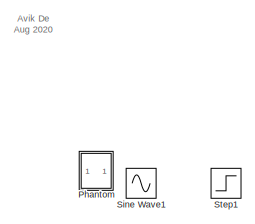
[diagram: root canvas - part 1/2, top center region]
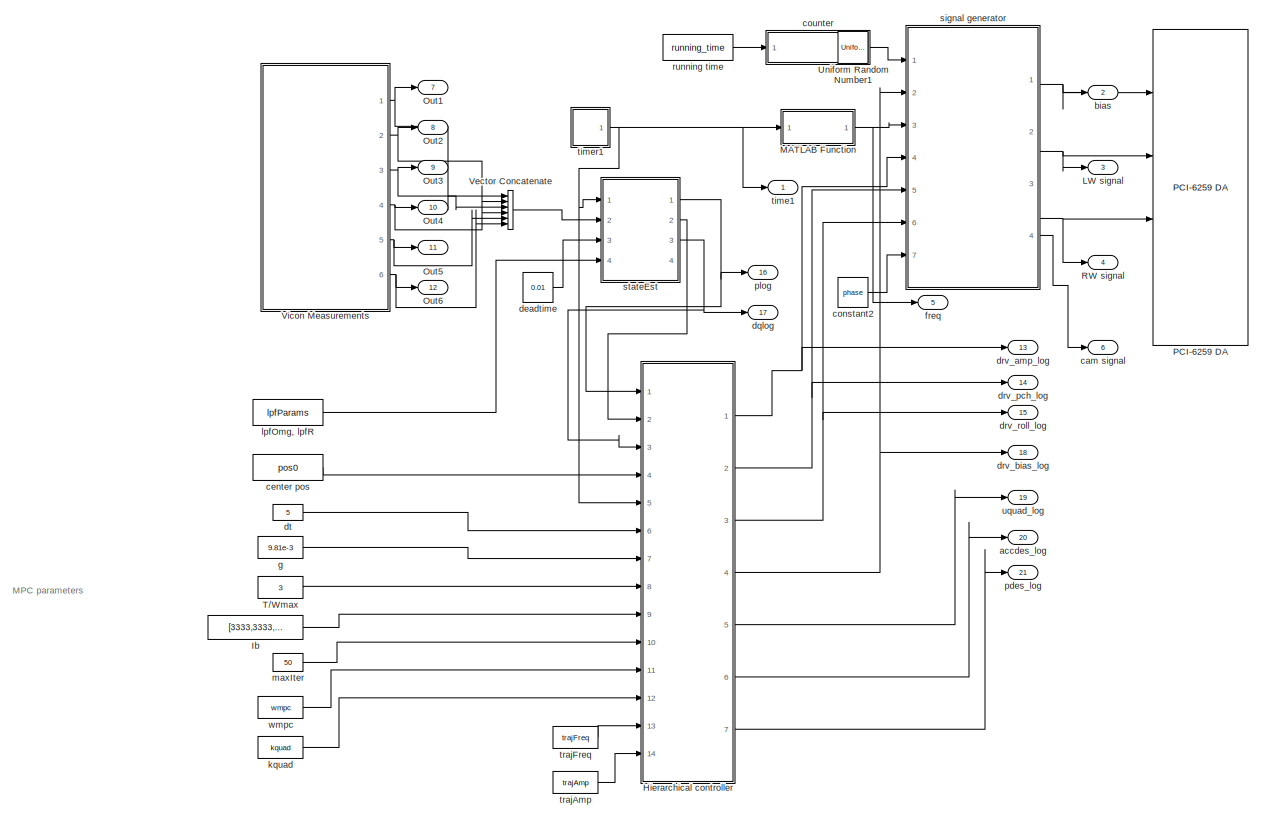
[diagram: root canvas - part 2/2, most of the canvas]
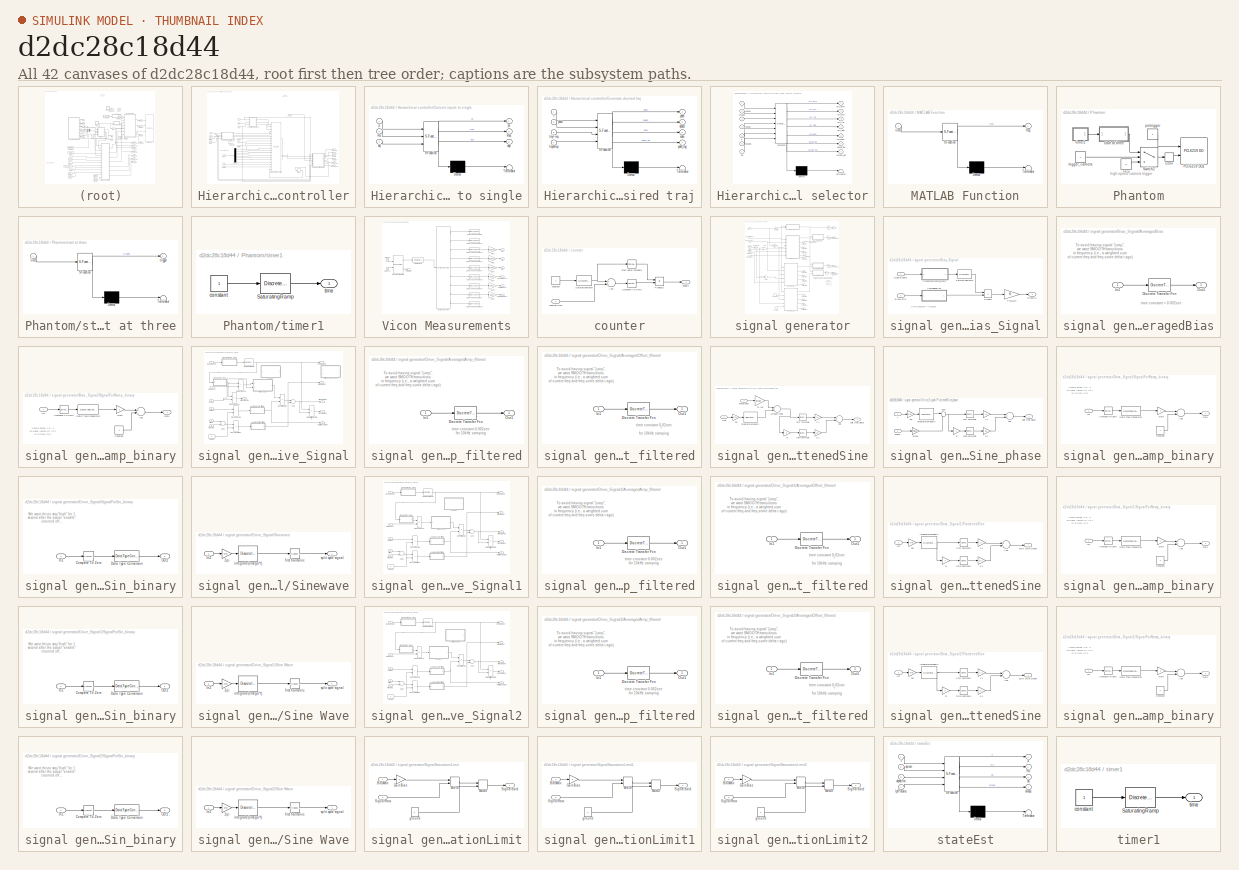
[diagram: thumbnail index - all 42 canvases of the model, root first then tree order]
MODEL slx_d2dc28c18d44
KIND model
CONFIG AbsTol = auto
CONFIG EnableMultiTasking = on
CONFIG FixedStep = 0.0002
CONFIG MaxStep = auto
CONFIG MinStep = auto
CONFIG RelTol = 1e-3
CONFIG SampleTimeConstraint = Unconstrained
CONFIG Solver = FixedStepDiscrete
CONFIG SolverName = FixedStepDiscrete
CONFIG StartTime = 0.0
CONFIG StopTime = 20
BLOCK [SubSystem] Hierarchical controller
  Ports = [14, 7]
  RequestExecContextInheritance = off
  Variant = off
BLOCK [SubSystem] Hierarchical controller/Convert inputs to single
  ErrorFcn = Stateflow.Translate.translate
  PermitHierarchicalResolution = ExplicitOnly
  Ports = [3, 3]
  RequestExecContextInheritance = off
  SFBlockType = MATLAB Function
  TreatAsAtomicUnit = on
  Variant = off
BLOCK [Demux] Hierarchical controller/Convert inputs to single/ Demux 
  Outputs = 1
  Ports = [1, 1]
BLOCK [S-Function] Hierarchical controller/Convert inputs to single/ SFunction 
  EnableBusSupport = on
  FunctionName = sf_sfun
  PortCounts = [3 4]
  Ports = [3, 4]
  SFcnIsStateOwnerBlock = off
  SFunctionDeploymentMode = off
  Tag = Stateflow S-Function umpc_wl_qp_beckymod2 3
BLOCK [Terminator] Hierarchical controller/Convert inputs to single/ Terminator 
BLOCK [Inport] Hierarchical controller/Convert inputs to single/Rb
  IconDisplay = Port number
  Port = 2
BLOCK [Outport] Hierarchical controller/Convert inputs to single/Rbs
  IconDisplay = Port number
  Port = 2
BLOCK [Inport] Hierarchical controller/Convert inputs to single/dq
  IconDisplay = Port number
  Port = 3
BLOCK [Outport] Hierarchical controller/Convert inputs to single/dqs
  IconDisplay = Port number
  Port = 3
BLOCK [Inport] Hierarchical controller/Convert inputs to single/p
  IconDisplay = Port number
BLOCK [Outport] Hierarchical controller/Convert inputs to single/ps
  IconDisplay = Port number
BLOCK [Delay] Hierarchical controller/Delay
  DelayLength = 1
  InitialCondition = 0
  InputPortMap = u0
  Ports = [1, 1]
BLOCK [Demux] Hierarchical controller/Demux
  DisplayOption = bar
  Outputs = 8
  Ports = [1, 8]
BLOCK [SubSystem] Hierarchical controller/Generate desired traj
  ErrorFcn = Stateflow.Translate.translate
  PermitHierarchicalResolution = ExplicitOnly
  Ports = [4, 4]
  RequestExecContextInheritance = off
  SFBlockType = MATLAB Function
  TreatAsAtomicUnit = on
  Variant = off
BLOCK [Demux] Hierarchical controller/Generate desired traj/ Demux 
  Outputs = 1
  Ports = [1, 1]
BLOCK [S-Function] Hierarchical controller/Generate desired traj/ SFunction 
  EnableBusSupport = on
  FunctionName = sf_sfun
  PortCounts = [4 5]
  Ports = [4, 5]
  SFcnIsStateOwnerBlock = off
  SFunctionDeploymentMode = off
  Tag = Stateflow S-Function umpc_wl_qp_beckymod2 1
BLOCK [Terminator] Hierarchical controller/Generate desired traj/ Terminator 
BLOCK [Outport] Hierarchical controller/Generate desired traj/dpdes
  IconDisplay = Port number
  Port = 2
BLOCK [Outport] Hierarchical controller/Generate desired traj/pdes
  IconDisplay = Port number
BLOCK [Outport] Hierarchical controller/Generate desired traj/pdes_log
  IconDisplay = Port number
  Port = 4
BLOCK [Inport] Hierarchical controller/Generate desired traj/pos0
  IconDisplay = Port number
  Port = 2
BLOCK [Outport] Hierarchical controller/Generate desired traj/sdes
  IconDisplay = Port number
  Port = 3
BLOCK [Inport] Hierarchical controller/Generate desired traj/t
  IconDisplay = Port number
BLOCK [Inport] Hierarchical controller/Generate desired traj/trajAmp
  IconDisplay = Port number
  Port = 4
BLOCK [Inport] Hierarchical controller/Generate desired traj/trajFreq
  IconDisplay = Port number
  Port = 3
BLOCK [S-Function] Hierarchical controller/High-level MPC controller
  EnableBusSupport = off
  FunctionName = umpcS
  Parameters = SampleTime
  Ports = [20, 2]
  SFcnIsStateOwnerBlock = off
  SFunctionDeploymentMode = off
BLOCK [Inport] Hierarchical controller/Ib
  IconDisplay = Port number
  Port = 9
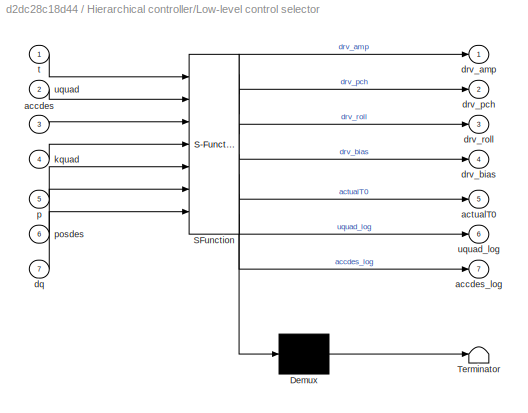
BLOCK [SubSystem] Hierarchical controller/Low-level control selector
  ErrorFcn = Stateflow.Translate.translate
  PermitHierarchicalResolution = ExplicitOnly
  Ports = [7, 7]
  RequestExecContextInheritance = off
  SFBlockType = MATLAB Function
  TreatAsAtomicUnit = on
  Variant = off
BLOCK [Demux] Hierarchical controller/Low-level control selector/ Demux 
  Outputs = 1
  Ports = [1, 1]
BLOCK [S-Function] Hierarchical controller/Low-level control selector/ SFunction 
  EnableBusSupport = on
  FunctionName = sf_sfun
  PortCounts = [7 8]
  Ports = [7, 8]
  SFcnIsStateOwnerBlock = off
  SFunctionDeploymentMode = off
  Tag = Stateflow S-Function umpc_wl_qp_beckymod2 5
BLOCK [Terminator] Hierarchical controller/Low-level control selector/ Terminator 
BLOCK [Inport] Hierarchical controller/Low-level control selector/accdes
  IconDisplay = Port number
  Port = 3
BLOCK [Outport] Hierarchical controller/Low-level control selector/accdes_log
  IconDisplay = Port number
  Port = 7
BLOCK [Outport] Hierarchical controller/Low-level control selector/actualT0
  IconDisplay = Port number
  Port = 5
BLOCK [Inport] Hierarchical controller/Low-level control selector/dq
  IconDisplay = Port number
  Port = 7
BLOCK [Outport] Hierarchical controller/Low-level control selector/drv_amp
  IconDisplay = Port number
BLOCK [Outport] Hierarchical controller/Low-level control selector/drv_bias
  IconDisplay = Port number
  Port = 4
BLOCK [Outport] Hierarchical controller/Low-level control selector/drv_pch
  IconDisplay = Port number
  Port = 2
BLOCK [Outport] Hierarchical controller/Low-level control selector/drv_roll
  IconDisplay = Port number
  Port = 3
BLOCK [Inport] Hierarchical controller/Low-level control selector/kquad
  IconDisplay = Port number
  Port = 4
BLOCK [Inport] Hierarchical controller/Low-level control selector/p
  IconDisplay = Port number
  Port = 5
BLOCK [Inport] Hierarchical controller/Low-level control selector/posdes
  IconDisplay = Port number
  Port = 6
BLOCK [Inport] Hierarchical controller/Low-level control selector/t
  IconDisplay = Port number
BLOCK [Inport] Hierarchical controller/Low-level control selector/uquad
  IconDisplay = Port number
  Port = 2
BLOCK [Outport] Hierarchical controller/Low-level control selector/uquad_log
  IconDisplay = Port number
  Port = 6
BLOCK [Inport] Hierarchical controller/Rb
  IconDisplay = Port number
  Port = 2
BLOCK [Inport] Hierarchical controller/T//Wmax
  IconDisplay = Port number
  Port = 8
BLOCK [Outport] Hierarchical controller/accdes_log
  IconDisplay = Port number
  Port = 6
BLOCK [Inport] Hierarchical controller/dq
  IconDisplay = Port number
  Port = 3
BLOCK [Outport] Hierarchical controller/drv_amp
  IconDisplay = Port number
BLOCK [Outport] Hierarchical controller/drv_bias
  IconDisplay = Port number
  Port = 4
BLOCK [Outport] Hierarchical controller/drv_pch
  IconDisplay = Port number
  Port = 2
BLOCK [Outport] Hierarchical controller/drv_roll
  IconDisplay = Port number
  Port = 3
BLOCK [Inport] Hierarchical controller/g
  IconDisplay = Port number
  Port = 7
BLOCK [Inport] Hierarchical controller/kquad
  IconDisplay = Port number
  Port = 12
BLOCK [Inport] Hierarchical controller/maxIter
  IconDisplay = Port number
  Port = 10
BLOCK [Inport] Hierarchical controller/mpc dt
  IconDisplay = Port number
  Port = 6
BLOCK [Inport] Hierarchical controller/p
  IconDisplay = Port number
BLOCK [Outport] Hierarchical controller/pdes_log
  IconDisplay = Port number
  OutDataTypeStr = double
  Port = 7
BLOCK [Inport] Hierarchical controller/pos0
  IconDisplay = Port number
  Port = 4
BLOCK [Inport] Hierarchical controller/t
  IconDisplay = Port number
  Port = 5
BLOCK [Inport] Hierarchical controller/trajAmp
  IconDisplay = Port number
  Port = 14
BLOCK [Inport] Hierarchical controller/trajFreq
  IconDisplay = Port number
  Port = 13
BLOCK [Outport] Hierarchical controller/uquad_log
  IconDisplay = Port number
  Port = 5
BLOCK [Inport] Hierarchical controller/wmpc
  IconDisplay = Port number
  Port = 11
BLOCK [Constant] Ib
  OutDataTypeStr = single
  SampleTime = -1
  Value = [3333,3333,1000]
BLOCK [Outport] LW signal
  IconDisplay = Port number
  Port = 3
BLOCK [SubSystem] MATLAB Function
  ErrorFcn = Stateflow.Translate.translate
  PermitHierarchicalResolution = ExplicitOnly
  Ports = [1, 1]
  RequestExecContextInheritance = off
  SFBlockType = MATLAB Function
  TreatAsAtomicUnit = on
  Variant = off
BLOCK [Demux] MATLAB Function/ Demux 
  Outputs = 1
  Ports = [1, 1]
BLOCK [S-Function] MATLAB Function/ SFunction 
  EnableBusSupport = on
  FunctionName = sf_sfun
  Parameters = T,f_fin,f_int
  PortCounts = [1 2]
  Ports = [1, 2]
  SFcnIsStateOwnerBlock = off
  SFunctionDeploymentMode = off
  Tag = Stateflow S-Function umpc_wl_qp_beckymod2 2
BLOCK [Terminator] MATLAB Function/ Terminator 
BLOCK [Outport] MATLAB Function/freq
  IconDisplay = Port number
BLOCK [Inport] MATLAB Function/time
  IconDisplay = Port number
BLOCK [Outport] Out1
  IconDisplay = Port number
  Port = 7
BLOCK [Outport] Out2
  IconDisplay = Port number
  Port = 8
BLOCK [Outport] Out3
  IconDisplay = Port number
  Port = 9
BLOCK [Outport] Out4
  IconDisplay = Port number
  Port = 10
BLOCK [Outport] Out5
  IconDisplay = Port number
  Port = 11
BLOCK [Outport] Out6
  IconDisplay = Port number
  Port = 12
BLOCK [Reference] PCI-6259 DA  REF=xpcnilib/D//A/M Series/PCI-6259 DA
  Ports = [4]
  SourceBlock = xpcnilib/D//A/M Series/PCI-6259 DA
  SourceProductBaseCode = XP
  SourceProductName = Simulink Real-Time
  SourceType = danipci6259
BLOCK [SubSystem] Phantom
  Ports = []
  RequestExecContextInheritance = off
  Variant = off
BLOCK [Reference] Phantom/PCI-6259 DO1  REF=xpcnilib/Digital
Output/M Series/PCI-6259 DO
  Ports = [2]
  SourceBlock = xpcnilib/Digital\nOutput/M Series/PCI-6259 DO
  SourceProductBaseCode = XP
  SourceProductName = Simulink Real-Time
  SourceType = donipci6259
BLOCK [Switch] Phantom/Switch2
  Criteria = u2 > Threshold
  InputSameDT = off
  SaturateOnIntegerOverflow = off
BLOCK [DataTypeConversion] Phantom/conv
  OutDataTypeStr = double
  RndMeth = Floor
  SaturateOnIntegerOverflow = off
BLOCK [Constant] Phantom/pretrigger
BLOCK [SubSystem] Phantom/start at three
  ErrorFcn = Stateflow.Translate.translate
  PermitHierarchicalResolution = ExplicitOnly
  Ports = [1, 1]
  RequestExecContextInheritance = off
  SFBlockType = MATLAB Function
  TreatAsAtomicUnit = on
  Variant = off
BLOCK [Demux] Phantom/start at three/ Demux 
  Outputs = 1
  Ports = [1, 1]
BLOCK [S-Function] Phantom/start at three/ SFunction 
  EnableBusSupport = on
  FunctionName = sf_sfun
  PortCounts = [1 2]
  Ports = [1, 2]
  SFcnIsStateOwnerBlock = off
  SFunctionDeploymentMode = off
  Tag = Stateflow S-Function umpc_wl_qp_beckymod2 16
BLOCK [Terminator] Phantom/start at three/ Terminator 
BLOCK [Inport] Phantom/start at three/time
  IconDisplay = Port number
BLOCK [Outport] Phantom/start at three/trigger
  IconDisplay = Port number
BLOCK [SubSystem] Phantom/timer1
  Ports = [0, 1]
  RequestExecContextInheritance = off
  Variant = off
BLOCK [DiscreteIntegrator] Phantom/timer1/SaturatingRamp
  ICPrevOutput = DiscIntNeverNeededParam
  ICPrevScaledInput = DiscIntNeverNeededParam
  LowerSaturationLimit = 0
  Ports = [1, 1]
  SampleTime = -1
  UpperSaturationLimit = 1
  gainval = 1
BLOCK [Constant] Phantom/timer1/constant
BLOCK [Outport] Phantom/timer1/time
  IconDisplay = Port number
BLOCK [Constant] Phantom/trigger_camera
BLOCK [Constant] Phantom/zero
  Value = 0
BLOCK [Outport] RW signal
  IconDisplay = Port number
  Port = 4
BLOCK [Sin] Sine Wave1
  IOType = siggen
  Ports = [0, 1]
  SampleTime = 0
BLOCK [Step] Step1
  IOType = siggen
  SampleTime = 0
BLOCK [Constant] T//Wmax
  OutDataTypeStr = single
  SampleTime = -1
  Value = 3
BLOCK [UniformRandomNumber] Uniform Random Number1
  IOType = siggen
  SampleTime = 0
BLOCK [Concatenate] Vector Concatenate
  NumInputs = 6
  Ports = [6, 1]
BLOCK [SubSystem] Vicon Measurements
  Ports = [0, 6]
  RequestExecContextInheritance = off
  Variant = off
BLOCK [Reference] Vicon Measurements/Baseboard Serial F  REF=xpcseriallib/Mainboard/Baseboard
Serial F
  Ports = [2, 2]
  SourceBlock = xpcseriallib/Mainboard/Baseboard\nSerial F
  SourceProductBaseCode = XP
  SourceProductName = Simulink Real-Time
  SourceType = Baseboard RS232 Send Receive
BLOCK [Reference] Vicon Measurements/Byte Unpacking   REF=xpcutilitieslib/Byte Unpacking 
  Ports = [1, 9]
  SourceBlock = xpcutilitieslib/Byte Unpacking
  SourceProductBaseCode = XP
  SourceProductName = Simulink Real-Time
  SourceType = xpcbytepacking
BLOCK [DataTypeConversion] Vicon Measurements/Data Type Conversion
  OutDataTypeStr = double
  RndMeth = Floor
  SaturateOnIntegerOverflow = off
BLOCK [DataTypeConversion] Vicon Measurements/Data Type Conversion1
  OutDataTypeStr = double
  RndMeth = Floor
  SaturateOnIntegerOverflow = off
BLOCK [DataTypeConversion] Vicon Measurements/Data Type Conversion2
  OutDataTypeStr = double
  RndMeth = Floor
  SaturateOnIntegerOverflow = off
BLOCK [DataTypeConversion] Vicon Measurements/Data Type Conversion3
  OutDataTypeStr = double
  RndMeth = Floor
  SaturateOnIntegerOverflow = off
BLOCK [DataTypeConversion] Vicon Measurements/Data Type Conversion4
  OutDataTypeStr = double
  RndMeth = Floor
  SaturateOnIntegerOverflow = off
BLOCK [DataTypeConversion] Vicon Measurements/Data Type Conversion5
  OutDataTypeStr = double
  RndMeth = Floor
  SaturateOnIntegerOverflow = off
BLOCK [DataTypeConversion] Vicon Measurements/Data Type Conversion6
  OutDataTypeStr = double
  RndMeth = Floor
  SaturateOnIntegerOverflow = off
BLOCK [DataTypeConversion] Vicon Measurements/Data Type Conversion7
  OutDataTypeStr = double
  RndMeth = Floor
  SaturateOnIntegerOverflow = off
BLOCK [DataTypeConversion] Vicon Measurements/Data Type Conversion8
  OutDataTypeStr = double
  RndMeth = Floor
  SaturateOnIntegerOverflow = off
BLOCK [Reference] Vicon Measurements/FIFO bin read   REF=xpcseriallib/FIFO bin read 
  Ports = [1, 1]
  SourceBlock = xpcseriallib/FIFO bin read
  SourceProductBaseCode = XP
  SourceProductName = Simulink Real-Time
  SourceType = Asynchronous FIFO Block: reader
BLOCK [Gain] Vicon Measurements/Gain4
  Gain = 0.00001
  OutDataTypeStr = Inherit: Inherit via internal rule
  ParamDataTypeStr = Inherit: Inherit via internal rule
  SaturateOnIntegerOverflow = off
BLOCK [Gain] Vicon Measurements/Gain5
  Gain = 0.00001
  OutDataTypeStr = Inherit: Inherit via internal rule
  ParamDataTypeStr = Inherit: Inherit via internal rule
  SaturateOnIntegerOverflow = off
BLOCK [Gain] Vicon Measurements/Gain6
  Gain = 0.00001
  OutDataTypeStr = Inherit: Inherit via internal rule
  ParamDataTypeStr = Inherit: Inherit via internal rule
  SaturateOnIntegerOverflow = off
BLOCK [Gain] Vicon Measurements/Gain7
  Gain = 0.001
  OutDataTypeStr = Inherit: Inherit via internal rule
  ParamDataTypeStr = Inherit: Inherit via internal rule
  SaturateOnIntegerOverflow = off
BLOCK [Gain] Vicon Measurements/Gain8
  Gain = 0.001
  OutDataTypeStr = Inherit: Inherit via internal rule
  ParamDataTypeStr = Inherit: Inherit via internal rule
  SaturateOnIntegerOverflow = off
BLOCK [Gain] Vicon Measurements/Gain9
  Gain = 0.001
  OutDataTypeStr = Inherit: Inherit via internal rule
  ParamDataTypeStr = Inherit: Inherit via internal rule
  SaturateOnIntegerOverflow = off
BLOCK [Ground] Vicon Measurements/Ground
BLOCK [Ground] Vicon Measurements/Ground1
BLOCK [Terminator] Vicon Measurements/Terminator
BLOCK [Outport] Vicon Measurements/X (m)
  IconDisplay = Port number
BLOCK [Outport] Vicon Measurements/Y (m)
  IconDisplay = Port number
  Port = 2
BLOCK [Outport] Vicon Measurements/Z (m)
  IconDisplay = Port number
  Port = 3
BLOCK [Outport] Vicon Measurements/alpha (radians)
  IconDisplay = Port number
  Port = 4
BLOCK [Outport] Vicon Measurements/beta (radians)
  IconDisplay = Port number
  Port = 5
BLOCK [Outport] Vicon Measurements/gamma (radians)
  IconDisplay = Port number
  Port = 6
BLOCK [Outport] accdes_log
  IconDisplay = Port number
  Port = 20
BLOCK [Outport] bias
  IconDisplay = Port number
  Port = 2
BLOCK [Outport] cam signal
  IconDisplay = Port number
  Port = 6
BLOCK [Constant] center pos
  OutDataTypeStr = single
  SampleTime = -1
  Value = pos0
BLOCK [Constant] constant2
  Value = phase
BLOCK [SubSystem] counter
  Ports = [1, 1]
  RequestExecContextInheritance = off
  Variant = off
BLOCK [Sum] counter/Add
  InputSameDT = off
  Inputs = +-
  OutDataTypeStr = Inherit: Inherit via internal rule
  Ports = [2, 1]
  SaturateOnIntegerOverflow = off
BLOCK [Reference] counter/Compare To Zero  REF=simulink/Logic and Bit
Operations/Compare
To Zero
  Ports = [1, 1]
  SourceBlock = simulink/Logic and Bit\nOperations/Compare\nTo Zero
  SourceProductBaseCode = SL
  SourceProductName = Simulink
  SourceType = Compare To Zero
BLOCK [Product] counter/Product2
  InputSameDT = off
  OutDataTypeStr = Inherit: Inherit via internal rule
  Ports = [2, 1]
  SaturateOnIntegerOverflow = off
BLOCK [DiscreteIntegrator] counter/SaturatingRamp
  ICPrevOutput = DiscIntNeverNeededParam
  ICPrevScaledInput = DiscIntNeverNeededParam
  LowerSaturationLimit = 0
  Ports = [1, 1]
  SampleTime = -1
  UpperSaturationLimit = 1
  gainval = 1
BLOCK [Constant] counter/constant
BLOCK [Outport] counter/enable
  IconDisplay = Port number
BLOCK [Inport] counter/running time
  IconDisplay = Port number
BLOCK [Reference] counter/start delay compare  REF=simulink/Logic and Bit
Operations/Compare
To Constant
  Ports = [1, 1]
  SourceBlock = simulink/Logic and Bit\nOperations/Compare\nTo Constant
  SourceProductBaseCode = SL
  SourceProductName = Simulink
  SourceType = Compare To Constant
BLOCK [Constant] deadtime
  Value = 0.01
BLOCK [Outport] dqlog
  IconDisplay = Port number
  Port = 17
BLOCK [Outport] drv_amp_log
  IconDisplay = Port number
  Port = 13
BLOCK [Outport] drv_bias_log
  IconDisplay = Port number
  Port = 18
BLOCK [Outport] drv_pch_log
  IconDisplay = Port number
  Port = 14
BLOCK [Outport] drv_roll_log
  IconDisplay = Port number
  Port = 15
BLOCK [Constant] dt
  OutDataTypeStr = single
  SampleTime = -1
  Value = 5
BLOCK [Outport] freq
  IconDisplay = Port number
  Port = 5
BLOCK [Constant] g
  OutDataTypeStr = single
  SampleTime = -1
  Value = 9.81e-3
BLOCK [Constant] kquad
  OutDataTypeStr = single
  SampleTime = -1
  Value = kquad
  VectorParams1D = off
BLOCK [Constant] lpfOmg, lpfR
  OutDataTypeStr = double
  SampleTime = -1
  Value = lpfParams
  VectorParams1D = off
BLOCK [Constant] maxIter
  OutDataTypeStr = int32
  SampleTime = -1
  Value = 50
BLOCK [Outport] pdes_log
  IconDisplay = Port number
  Port = 21
BLOCK [Outport] plog
  IconDisplay = Port number
  Port = 16
BLOCK [Constant] running time
  SampleTime = -1
  Value = running_time
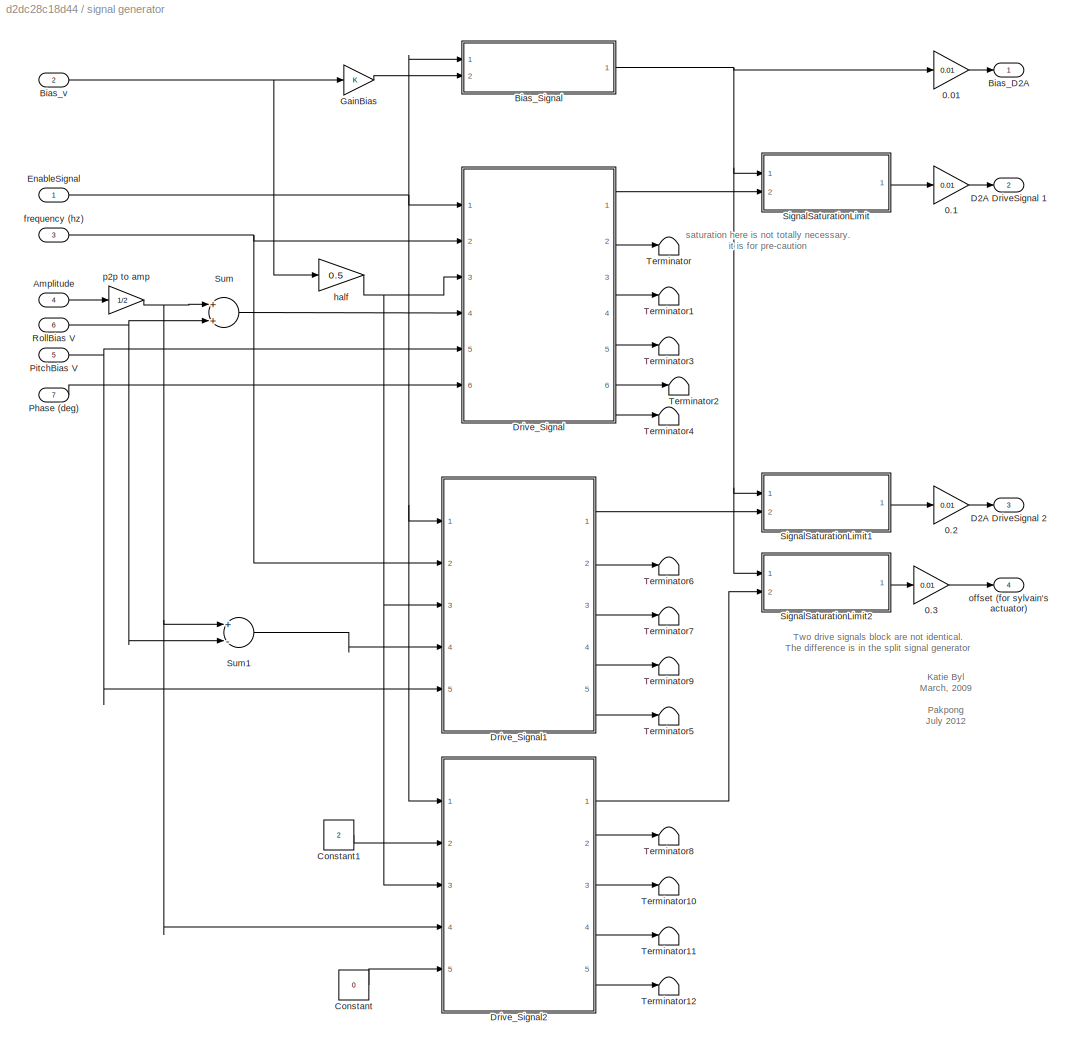
BLOCK [SubSystem] signal generator
  Ports = [7, 4]
  RequestExecContextInheritance = off
  Variant = off
BLOCK [Gain] signal generator/0.01
  Gain = 0.01
  OutDataTypeStr = Inherit: Inherit via internal rule
  ParamDataTypeStr = Inherit: Inherit via internal rule
  SaturateOnIntegerOverflow = off
BLOCK [Gain] signal generator/0.1
  Gain = 0.01
  OutDataTypeStr = Inherit: Inherit via internal rule
  ParamDataTypeStr = Inherit: Inherit via internal rule
  SaturateOnIntegerOverflow = off
BLOCK [Gain] signal generator/0.2
  Gain = 0.01
  OutDataTypeStr = Inherit: Inherit via internal rule
  ParamDataTypeStr = Inherit: Inherit via internal rule
  SaturateOnIntegerOverflow = off
BLOCK [Gain] signal generator/0.3
  Gain = 0.01
  OutDataTypeStr = Inherit: Inherit via internal rule
  ParamDataTypeStr = Inherit: Inherit via internal rule
  SaturateOnIntegerOverflow = off
BLOCK [Inport] signal generator/Amplitude
  IconDisplay = Port number
  Port = 4
BLOCK [Outport] signal generator/Bias_D2A
  IconDisplay = Port number
BLOCK [SubSystem] signal generator/Bias_Signal
  Ports = [2, 1]
  RequestExecContextInheritance = off
  Variant = off
BLOCK [SubSystem] signal generator/Bias_Signal/AveragedBias
  Ports = [1, 1]
  RequestExecContextInheritance = off
  Variant = off
BLOCK [DiscreteTransferFcn] signal generator/Bias_Signal/AveragedBias/Discrete Transfer Fcn
  Denominator = [1 -.95]
  InputPortMap = u0
  Numerator = [0.05]
  Ports = [1, 1]
BLOCK [Inport] signal generator/Bias_Signal/AveragedBias/In1
  IconDisplay = Port number
BLOCK [Outport] signal generator/Bias_Signal/AveragedBias/Out1
  IconDisplay = Port number
BLOCK [Outport] signal generator/Bias_Signal/BiasD2A
  IconDisplay = Port number
BLOCK [Inport] signal generator/Bias_Signal/BiasVolts
  IconDisplay = Port number
  Port = 2
BLOCK [Gain] signal generator/Bias_Signal/PreGain
  OutDataTypeStr = Inherit: Inherit via internal rule
  ParamDataTypeStr = Inherit: Inherit via internal rule
  SaturateOnIntegerOverflow = off
BLOCK [Product] signal generator/Bias_Signal/Product
  InputSameDT = off
  OutDataTypeStr = Inherit: Inherit via internal rule
  Ports = [2, 1]
  SaturateOnIntegerOverflow = off
BLOCK [Inport] signal generator/Bias_Signal/QuasiEnable
  IconDisplay = Port number
BLOCK [SubSystem] signal generator/Bias_Signal/SIgnalForRamp_binary
  Ports = [1, 1]
  RequestExecContextInheritance = off
  Variant = off
BLOCK [Sum] signal generator/Bias_Signal/SIgnalForRamp_binary/Add
  InputSameDT = off
  Inputs = +-
  OutDataTypeStr = Inherit: Inherit via internal rule
  Ports = [2, 1]
  SaturateOnIntegerOverflow = off
BLOCK [Reference] signal generator/Bias_Signal/SIgnalForRamp_binary/Compare To Zero  REF=simulink/Logic and Bit
Operations/Compare
To Zero
  Ports = [1, 1]
  SourceBlock = simulink/Logic and Bit\nOperations/Compare\nTo Zero
  SourceProductBaseCode = SL
  SourceProductName = Simulink
  SourceType = Compare To Zero
BLOCK [Constant] signal generator/Bias_Signal/SIgnalForRamp_binary/Constant
BLOCK [DataTypeConversion] signal generator/Bias_Signal/SIgnalForRamp_binary/Data Type Conversion
  OutDataTypeStr = double
  RndMeth = Floor
  SaturateOnIntegerOverflow = off
BLOCK [Gain] signal generator/Bias_Signal/SIgnalForRamp_binary/Gain
  Gain = 2
  OutDataTypeStr = Inherit: Inherit via internal rule
  ParamDataTypeStr = Inherit: Inherit via internal rule
  SaturateOnIntegerOverflow = off
BLOCK [Inport] signal generator/Bias_Signal/SIgnalForRamp_binary/In1
  IconDisplay = Port number
BLOCK [Outport] signal generator/Bias_Signal/SIgnalForRamp_binary/Out1
  IconDisplay = Port number
BLOCK [DiscreteIntegrator] signal generator/Bias_Signal/SaturatingRamp
  ICPrevOutput = DiscIntNeverNeededParam
  ICPrevScaledInput = DiscIntNeverNeededParam
  LimitOutput = on
  LowerSaturationLimit = 0
  Ports = [1, 1]
  SampleTime = -1
  UpperSaturationLimit = 1
  gainval = 10
BLOCK [Inport] signal generator/Bias_v
  IconDisplay = Port number
  Port = 2
BLOCK [Constant] signal generator/Constant
  Value = 0
BLOCK [Constant] signal generator/Constant1
  Value = 2
BLOCK [Outport] signal generator/D2A DriveSignal 1
  IconDisplay = Port number
  Port = 2
BLOCK [Outport] signal generator/D2A DriveSignal 2
  IconDisplay = Port number
  Port = 3
BLOCK [SubSystem] signal generator/Drive_Signal
  Ports = [6, 6]
  RequestExecContextInheritance = off
  Variant = off
BLOCK [Inport] signal generator/Drive_Signal/Amplitude
  IconDisplay = Port number
  Port = 4
BLOCK [Outport] signal generator/Drive_Signal/AmplitudeOutput
  IconDisplay = Port number
  Port = 4
BLOCK [SubSystem] signal generator/Drive_Signal/AveragedAmp_filtered
  Ports = [1, 1]
  RequestExecContextInheritance = off
  Variant = off
BLOCK [DiscreteTransferFcn] signal generator/Drive_Signal/AveragedAmp_filtered/Discrete Transfer Fcn
  Denominator = [1 -.95]
  InputPortMap = u0
  Numerator = [0.05]
  Ports = [1, 1]
BLOCK [Inport] signal generator/Drive_Signal/AveragedAmp_filtered/In1
  IconDisplay = Port number
BLOCK [Outport] signal generator/Drive_Signal/AveragedAmp_filtered/Out1
  IconDisplay = Port number
BLOCK [SubSystem] signal generator/Drive_Signal/AveragedOffset_filtered
  Ports = [1, 1]
  RequestExecContextInheritance = off
  Variant = off
BLOCK [DiscreteTransferFcn] signal generator/Drive_Signal/AveragedOffset_filtered/Discrete Transfer Fcn
  Denominator = [1 -.95]
  InputPortMap = u0
  Numerator = [0.05]
  Ports = [1, 1]
BLOCK [Inport] signal generator/Drive_Signal/AveragedOffset_filtered/In1
  IconDisplay = Port number
BLOCK [Outport] signal generator/Drive_Signal/AveragedOffset_filtered/Out1
  IconDisplay = Port number
BLOCK [SubSystem] signal generator/Drive_Signal/FlattenedSine
  Ports = [2, 1]
  RequestExecContextInheritance = off
  Variant = off
BLOCK [Gain] signal generator/Drive_Signal/FlattenedSine/0.1
  Gain = 0.1
  OutDataTypeStr = Inherit: Inherit via internal rule
  ParamDataTypeStr = Inherit: Inherit via internal rule
  SaturateOnIntegerOverflow = off
BLOCK [Gain] signal generator/Drive_Signal/FlattenedSine/1.1
  Gain = 1.1
  OutDataTypeStr = Inherit: Inherit via internal rule
  ParamDataTypeStr = Inherit: Inherit via internal rule
  SaturateOnIntegerOverflow = off
BLOCK [Gain] signal generator/Drive_Signal/FlattenedSine/2pi
  Gain = 2*pi
  OutDataTypeStr = Inherit: Inherit via internal rule
  ParamDataTypeStr = Inherit: Inherit via internal rule
  SaturateOnIntegerOverflow = off
BLOCK [Gain] signal generator/Drive_Signal/FlattenedSine/3f
  Gain = 3
  OutDataTypeStr = Inherit: Inherit via internal rule
  ParamDataTypeStr = Inherit: Inherit via internal rule
  SaturateOnIntegerOverflow = off
BLOCK [Sum] signal generator/Drive_Signal/FlattenedSine/Add
  InputSameDT = off
  OutDataTypeStr = Inherit: Inherit via internal rule
  Ports = [2, 1]
  SaturateOnIntegerOverflow = off
BLOCK [Trigonometry] signal generator/Drive_Signal/FlattenedSine/first harmonic
  OutputSignalType = real
  Ports = [1, 1]
BLOCK [Inport] signal generator/Drive_Signal/FlattenedSine/freq
  IconDisplay = Port number
BLOCK [DiscreteIntegrator] signal generator/Drive_Signal/FlattenedSine/integrate(omega*t)
  ICPrevOutput = DiscIntNeverNeededParam
  ICPrevScaledInput = DiscIntNeverNeededParam
  Ports = [1, 1]
  SampleTime = -1
BLOCK [Sum] signal generator/Drive_Signal/FlattenedSine/omega*t+phi0
  InputSameDT = off
  OutDataTypeStr = Inherit: Inherit via internal rule
  Ports = [2, 1]
  SaturateOnIntegerOverflow = off
BLOCK [Inport] signal generator/Drive_Signal/FlattenedSine/phase(deg)
  IconDisplay = Port number
  Port = 2
BLOCK [Outport] signal generator/Drive_Signal/FlattenedSine/split cycle signal
  IconDisplay = Port number
BLOCK [Trigonometry] signal generator/Drive_Signal/FlattenedSine/third harmonic
  OutputSignalType = real
  Ports = [1, 1]
BLOCK [Gain] signal generator/Drive_Signal/FlattenedSine/to rad
  Gain = pi/180
  OutDataTypeStr = Inherit: Inherit via internal rule
  ParamDataTypeStr = Inherit: Inherit via internal rule
  SaturateOnIntegerOverflow = off
BLOCK [SubSystem] signal generator/Drive_Signal/FlattenedSine_phase
  Ports = [2, 1]
  RequestExecContextInheritance = off
  Variant = off
BLOCK [Gain] signal generator/Drive_Signal/FlattenedSine_phase/0.1
  Gain = 0.1
  OutDataTypeStr = Inherit: Inherit via internal rule
  ParamDataTypeStr = Inherit: Inherit via internal rule
  SaturateOnIntegerOverflow = off
BLOCK [Gain] signal generator/Drive_Signal/FlattenedSine_phase/1.1
  Gain = 1.1
  OutDataTypeStr = Inherit: Inherit via internal rule
  ParamDataTypeStr = Inherit: Inherit via internal rule
  SaturateOnIntegerOverflow = off
BLOCK [Gain] signal generator/Drive_Signal/FlattenedSine_phase/2pi
  Gain = 2*pi
  OutDataTypeStr = Inherit: Inherit via internal rule
  ParamDataTypeStr = Inherit: Inherit via internal rule
  SaturateOnIntegerOverflow = off
BLOCK [Gain] signal generator/Drive_Signal/FlattenedSine_phase/3f
  Gain = 3
  OutDataTypeStr = Inherit: Inherit via internal rule
  ParamDataTypeStr = Inherit: Inherit via internal rule
  SaturateOnIntegerOverflow = off
BLOCK [Sum] signal generator/Drive_Signal/FlattenedSine_phase/Add
  InputSameDT = off
  OutDataTypeStr = Inherit: Inherit via internal rule
  Ports = [2, 1]
  SaturateOnIntegerOverflow = off
BLOCK [Sum] signal generator/Drive_Signal/FlattenedSine_phase/Sum
  IconShape = round
  InputSameDT = off
  Inputs = |++
  OutDataTypeStr = Inherit: Inherit via internal rule
  Ports = [2, 1]
  SaturateOnIntegerOverflow = off
BLOCK [Inport] signal generator/Drive_Signal/FlattenedSine_phase/f
  IconDisplay = Port number
BLOCK [Trigonometry] signal generator/Drive_Signal/FlattenedSine_phase/first harmonic
  OutputSignalType = real
  Ports = [1, 1]
BLOCK [DiscreteIntegrator] signal generator/Drive_Signal/FlattenedSine_phase/integrate(omega*t)
  ICPrevOutput = DiscIntNeverNeededParam
  ICPrevScaledInput = DiscIntNeverNeededParam
  Ports = [1, 1]
  SampleTime = -1
BLOCK [Inport] signal generator/Drive_Signal/FlattenedSine_phase/phase
  IconDisplay = Port number
  Port = 2
BLOCK [Gain] signal generator/Drive_Signal/FlattenedSine_phase/pi//180
  Gain = pi/180
  OutDataTypeStr = Inherit: Inherit via internal rule
  ParamDataTypeStr = Inherit: Inherit via internal rule
  SaturateOnIntegerOverflow = off
BLOCK [Outport] signal generator/Drive_Signal/FlattenedSine_phase/split cycle signal
  IconDisplay = Port number
BLOCK [Trigonometry] signal generator/Drive_Signal/FlattenedSine_phase/third harmonic
  OutputSignalType = real
  Ports = [1, 1]
BLOCK [Inport] signal generator/Drive_Signal/Frequency
  IconDisplay = Port number
  Port = 2
BLOCK [Inport] signal generator/Drive_Signal/Offset
  IconDisplay = Port number
  Port = 3
BLOCK [Outport] signal generator/Drive_Signal/OffsetOutput
  IconDisplay = Port number
  Port = 5
BLOCK [Product] signal generator/Drive_Signal/OutputWithRamping
  InputSameDT = off
  OutDataTypeStr = Inherit: Inherit via internal rule
  Ports = [2, 1]
  SaturateOnIntegerOverflow = off
BLOCK [Inport] signal generator/Drive_Signal/Phase
  IconDisplay = Port number
  Port = 6
BLOCK [Inport] signal generator/Drive_Signal/PitchBias
  IconDisplay = Port number
  Port = 5
BLOCK [Constant] signal generator/Drive_Signal/PreGain
BLOCK [Product] signal generator/Drive_Signal/PrescaledAmp
  InputSameDT = off
  OutDataTypeStr = Inherit: Inherit via internal rule
  Ports = [2, 1]
  SaturateOnIntegerOverflow = off
BLOCK [Product] signal generator/Drive_Signal/PrescaledOffset
  InputSameDT = off
  OutDataTypeStr = Inherit: Inherit via internal rule
  Ports = [2, 1]
  SaturateOnIntegerOverflow = off
BLOCK [Product] signal generator/Drive_Signal/ProductPhase
  InputSameDT = off
  OutDataTypeStr = Inherit: Inherit via internal rule
  Ports = [2, 1]
  SaturateOnIntegerOverflow = off
BLOCK [Product] signal generator/Drive_Signal/ProductPhase1
  InputSameDT = off
  OutDataTypeStr = Inherit: Inherit via internal rule
  Ports = [2, 1]
  SaturateOnIntegerOverflow = off
BLOCK [Inport] signal generator/Drive_Signal/QuasiEnable
  IconDisplay = Port number
BLOCK [Outport] signal generator/Drive_Signal/RampOutput
  IconDisplay = Port number
  Port = 3
BLOCK [DiscreteIntegrator] signal generator/Drive_Signal/RampUpOrDown
  ICPrevOutput = DiscIntNeverNeededParam
  ICPrevScaledInput = DiscIntNeverNeededParam
  LimitOutput = on
  LowerSaturationLimit = 0
  Ports = [1, 1]
  SampleTime = -1
  UpperSaturationLimit = 1
  gainval = 10
BLOCK [SubSystem] signal generator/Drive_Signal/SignalForRamp_binary
  Ports = [1, 1]
  RequestExecContextInheritance = off
  Variant = off
BLOCK [Sum] signal generator/Drive_Signal/SignalForRamp_binary/Add
  InputSameDT = off
  Inputs = +-
  OutDataTypeStr = Inherit: Inherit via internal rule
  Ports = [2, 1]
  SaturateOnIntegerOverflow = off
BLOCK [Reference] signal generator/Drive_Signal/SignalForRamp_binary/Compare To Zero  REF=simulink/Logic and Bit
Operations/Compare
To Zero
  Ports = [1, 1]
  SourceBlock = simulink/Logic and Bit\nOperations/Compare\nTo Zero
  SourceProductBaseCode = SL
  SourceProductName = Simulink
  SourceType = Compare To Zero
BLOCK [Constant] signal generator/Drive_Signal/SignalForRamp_binary/Constant
BLOCK [DataTypeConversion] signal generator/Drive_Signal/SignalForRamp_binary/Data Type Conversion
  OutDataTypeStr = double
  RndMeth = Floor
  SaturateOnIntegerOverflow = off
BLOCK [Gain] signal generator/Drive_Signal/SignalForRamp_binary/Gain
  Gain = 2
  OutDataTypeStr = Inherit: Inherit via internal rule
  ParamDataTypeStr = Inherit: Inherit via internal rule
  SaturateOnIntegerOverflow = off
BLOCK [Inport] signal generator/Drive_Signal/SignalForRamp_binary/In1
  IconDisplay = Port number
BLOCK [Outport] signal generator/Drive_Signal/SignalForRamp_binary/Out1
  IconDisplay = Port number
BLOCK [SubSystem] signal generator/Drive_Signal/SignalForSin_binary
  Ports = [1, 1]
  RequestExecContextInheritance = off
  Variant = off
BLOCK [Reference] signal generator/Drive_Signal/SignalForSin_binary/Compare To Zero  REF=simulink/Logic and Bit
Operations/Compare
To Zero
  Ports = [1, 1]
  SourceBlock = simulink/Logic and Bit\nOperations/Compare\nTo Zero
  SourceProductBaseCode = SL
  SourceProductName = Simulink
  SourceType = Compare To Zero
BLOCK [DataTypeConversion] signal generator/Drive_Signal/SignalForSin_binary/Data Type Conversion
  OutDataTypeStr = double
  RndMeth = Floor
  SaturateOnIntegerOverflow = off
BLOCK [Inport] signal generator/Drive_Signal/SignalForSin_binary/In1
  IconDisplay = Port number
BLOCK [Outport] signal generator/Drive_Signal/SignalForSin_binary/Out1
  IconDisplay = Port number
BLOCK [Outport] signal generator/Drive_Signal/SignalOutput
  IconDisplay = Port number
BLOCK [SubSystem] signal generator/Drive_Signal/Sinewave
  Ports = [1, 1]
  RequestExecContextInheritance = off
  Variant = off
BLOCK [Gain] signal generator/Drive_Signal/Sinewave/2pi
  Gain = 2*pi
  OutDataTypeStr = Inherit: Inherit via internal rule
  ParamDataTypeStr = Inherit: Inherit via internal rule
  SaturateOnIntegerOverflow = off
BLOCK [Inport] signal generator/Drive_Signal/Sinewave/In2
  IconDisplay = Port number
BLOCK [Trigonometry] signal generator/Drive_Signal/Sinewave/first harmonic
  OutputSignalType = real
  Ports = [1, 1]
BLOCK [DiscreteIntegrator] signal generator/Drive_Signal/Sinewave/integrate(omega*t)
  ICPrevOutput = DiscIntNeverNeededParam
  ICPrevScaledInput = DiscIntNeverNeededParam
  Ports = [1, 1]
  SampleTime = -1
BLOCK [Outport] signal generator/Drive_Signal/Sinewave/split cycle signal
  IconDisplay = Port number
BLOCK [Sum] signal generator/Drive_Signal/Sum
  InputSameDT = off
  OutDataTypeStr = Inherit: Inherit via internal rule
  Ports = [2, 1]
  SaturateOnIntegerOverflow = off
BLOCK [Sum] signal generator/Drive_Signal/Sum1
  InputSameDT = off
  OutDataTypeStr = Inherit: Inherit via internal rule
  Ports = [2, 1]
  SaturateOnIntegerOverflow = off
BLOCK [Outport] signal generator/Drive_Signal/WithoutRamp
  IconDisplay = Port number
  Port = 2
BLOCK [Outport] signal generator/Drive_Signal/WithoutRamp1
  IconDisplay = Port number
  Port = 6
BLOCK [Product] signal generator/Drive_Signal/signal with gain
  InputSameDT = off
  OutDataTypeStr = Inherit: Inherit via internal rule
  Ports = [2, 1]
  SaturateOnIntegerOverflow = off
BLOCK [SubSystem] signal generator/Drive_Signal1
  Ports = [5, 5]
  RequestExecContextInheritance = off
  Variant = off
BLOCK [Inport] signal generator/Drive_Signal1/Amplitude
  IconDisplay = Port number
  Port = 4
BLOCK [Outport] signal generator/Drive_Signal1/AmplitudeOutput
  IconDisplay = Port number
  Port = 4
BLOCK [SubSystem] signal generator/Drive_Signal1/AveragedAmp_filtered
  Ports = [1, 1]
  RequestExecContextInheritance = off
  Variant = off
BLOCK [DiscreteTransferFcn] signal generator/Drive_Signal1/AveragedAmp_filtered/Discrete Transfer Fcn
  Denominator = [1 -.95]
  InputPortMap = u0
  Numerator = [0.05]
  Ports = [1, 1]
BLOCK [Inport] signal generator/Drive_Signal1/AveragedAmp_filtered/In1
  IconDisplay = Port number
BLOCK [Outport] signal generator/Drive_Signal1/AveragedAmp_filtered/Out1
  IconDisplay = Port number
BLOCK [SubSystem] signal generator/Drive_Signal1/AveragedOffset_filtered
  Ports = [1, 1]
  RequestExecContextInheritance = off
  Variant = off
BLOCK [DiscreteTransferFcn] signal generator/Drive_Signal1/AveragedOffset_filtered/Discrete Transfer Fcn
  Denominator = [1 -.95]
  InputPortMap = u0
  Numerator = [0.05]
  Ports = [1, 1]
BLOCK [Inport] signal generator/Drive_Signal1/AveragedOffset_filtered/In1
  IconDisplay = Port number
BLOCK [Outport] signal generator/Drive_Signal1/AveragedOffset_filtered/Out1
  IconDisplay = Port number
BLOCK [SubSystem] signal generator/Drive_Signal1/FlattenedSine
  Ports = [1, 1]
  RequestExecContextInheritance = off
  Variant = off
BLOCK [Gain] signal generator/Drive_Signal1/FlattenedSine/0.1
  Gain = 0.1
  OutDataTypeStr = Inherit: Inherit via internal rule
  ParamDataTypeStr = Inherit: Inherit via internal rule
  SaturateOnIntegerOverflow = off
BLOCK [Gain] signal generator/Drive_Signal1/FlattenedSine/1.1
  Gain = 1.1
  OutDataTypeStr = Inherit: Inherit via internal rule
  ParamDataTypeStr = Inherit: Inherit via internal rule
  SaturateOnIntegerOverflow = off
BLOCK [Gain] signal generator/Drive_Signal1/FlattenedSine/2pi
  Gain = 2*pi
  OutDataTypeStr = Inherit: Inherit via internal rule
  ParamDataTypeStr = Inherit: Inherit via internal rule
  SaturateOnIntegerOverflow = off
BLOCK [Gain] signal generator/Drive_Signal1/FlattenedSine/3f
  Gain = 3
  OutDataTypeStr = Inherit: Inherit via internal rule
  ParamDataTypeStr = Inherit: Inherit via internal rule
  SaturateOnIntegerOverflow = off
BLOCK [Sum] signal generator/Drive_Signal1/FlattenedSine/Add
  InputSameDT = off
  OutDataTypeStr = Inherit: Inherit via internal rule
  Ports = [2, 1]
  SaturateOnIntegerOverflow = off
BLOCK [Inport] signal generator/Drive_Signal1/FlattenedSine/In2
  IconDisplay = Port number
BLOCK [Trigonometry] signal generator/Drive_Signal1/FlattenedSine/first harmonic
  OutputSignalType = real
  Ports = [1, 1]
BLOCK [DiscreteIntegrator] signal generator/Drive_Signal1/FlattenedSine/integrate(omega*t)
  ICPrevOutput = DiscIntNeverNeededParam
  ICPrevScaledInput = DiscIntNeverNeededParam
  Ports = [1, 1]
  SampleTime = -1
BLOCK [Outport] signal generator/Drive_Signal1/FlattenedSine/split cycle signal
  IconDisplay = Port number
BLOCK [Trigonometry] signal generator/Drive_Signal1/FlattenedSine/third harmonic
  OutputSignalType = real
  Ports = [1, 1]
BLOCK [Inport] signal generator/Drive_Signal1/Frequency
  IconDisplay = Port number
  Port = 2
BLOCK [Inport] signal generator/Drive_Signal1/Offset
  IconDisplay = Port number
  Port = 3
BLOCK [Outport] signal generator/Drive_Signal1/OffsetOutput
  IconDisplay = Port number
  Port = 5
BLOCK [Product] signal generator/Drive_Signal1/OutputWithRamping
  InputSameDT = off
  OutDataTypeStr = Inherit: Inherit via internal rule
  Ports = [2, 1]
  SaturateOnIntegerOverflow = off
BLOCK [Inport] signal generator/Drive_Signal1/PitchBias
  IconDisplay = Port number
  Port = 5
BLOCK [Constant] signal generator/Drive_Signal1/PreGain
BLOCK [Product] signal generator/Drive_Signal1/PrescaledAmp
  InputSameDT = off
  OutDataTypeStr = Inherit: Inherit via internal rule
  Ports = [2, 1]
  SaturateOnIntegerOverflow = off
BLOCK [Product] signal generator/Drive_Signal1/PrescaledOffset
  InputSameDT = off
  OutDataTypeStr = Inherit: Inherit via internal rule
  Ports = [2, 1]
  SaturateOnIntegerOverflow = off
BLOCK [Product] signal generator/Drive_Signal1/ProductPhase
  InputSameDT = off
  OutDataTypeStr = Inherit: Inherit via internal rule
  Ports = [2, 1]
  SaturateOnIntegerOverflow = off
BLOCK [Inport] signal generator/Drive_Signal1/QuasiEnable
  IconDisplay = Port number
BLOCK [Outport] signal generator/Drive_Signal1/RampOutput
  IconDisplay = Port number
  Port = 3
BLOCK [DiscreteIntegrator] signal generator/Drive_Signal1/RampUpOrDown
  ICPrevOutput = DiscIntNeverNeededParam
  ICPrevScaledInput = DiscIntNeverNeededParam
  LimitOutput = on
  LowerSaturationLimit = 0
  Ports = [1, 1]
  SampleTime = -1
  UpperSaturationLimit = 1
  gainval = 10
BLOCK [SubSystem] signal generator/Drive_Signal1/SignalForRamp_binary
  Ports = [1, 1]
  RequestExecContextInheritance = off
  Variant = off
BLOCK [Sum] signal generator/Drive_Signal1/SignalForRamp_binary/Add
  InputSameDT = off
  Inputs = +-
  OutDataTypeStr = Inherit: Inherit via internal rule
  Ports = [2, 1]
  SaturateOnIntegerOverflow = off
BLOCK [Reference] signal generator/Drive_Signal1/SignalForRamp_binary/Compare To Zero  REF=simulink/Logic and Bit
Operations/Compare
To Zero
  Ports = [1, 1]
  SourceBlock = simulink/Logic and Bit\nOperations/Compare\nTo Zero
  SourceProductBaseCode = SL
  SourceProductName = Simulink
  SourceType = Compare To Zero
BLOCK [Constant] signal generator/Drive_Signal1/SignalForRamp_binary/Constant
BLOCK [DataTypeConversion] signal generator/Drive_Signal1/SignalForRamp_binary/Data Type Conversion
  OutDataTypeStr = double
  RndMeth = Floor
  SaturateOnIntegerOverflow = off
BLOCK [Gain] signal generator/Drive_Signal1/SignalForRamp_binary/Gain
  Gain = 2
  OutDataTypeStr = Inherit: Inherit via internal rule
  ParamDataTypeStr = Inherit: Inherit via internal rule
  SaturateOnIntegerOverflow = off
BLOCK [Inport] signal generator/Drive_Signal1/SignalForRamp_binary/In1
  IconDisplay = Port number
BLOCK [Outport] signal generator/Drive_Signal1/SignalForRamp_binary/Out1
  IconDisplay = Port number
BLOCK [SubSystem] signal generator/Drive_Signal1/SignalForSin_binary
  Ports = [1, 1]
  RequestExecContextInheritance = off
  Variant = off
BLOCK [Reference] signal generator/Drive_Signal1/SignalForSin_binary/Compare To Zero  REF=simulink/Logic and Bit
Operations/Compare
To Zero
  Ports = [1, 1]
  SourceBlock = simulink/Logic and Bit\nOperations/Compare\nTo Zero
  SourceProductBaseCode = SL
  SourceProductName = Simulink
  SourceType = Compare To Zero
BLOCK [DataTypeConversion] signal generator/Drive_Signal1/SignalForSin_binary/Data Type Conversion
  OutDataTypeStr = double
  RndMeth = Floor
  SaturateOnIntegerOverflow = off
BLOCK [Inport] signal generator/Drive_Signal1/SignalForSin_binary/In1
  IconDisplay = Port number
BLOCK [Outport] signal generator/Drive_Signal1/SignalForSin_binary/Out1
  IconDisplay = Port number
BLOCK [Outport] signal generator/Drive_Signal1/SignalOutput
  IconDisplay = Port number
BLOCK [SubSystem] signal generator/Drive_Signal1/Sine Wave
  Ports = [1, 1]
  RequestExecContextInheritance = off
  Variant = off
BLOCK [Gain] signal generator/Drive_Signal1/Sine Wave/2pi
  Gain = 2*pi
  OutDataTypeStr = Inherit: Inherit via internal rule
  ParamDataTypeStr = Inherit: Inherit via internal rule
  SaturateOnIntegerOverflow = off
BLOCK [Inport] signal generator/Drive_Signal1/Sine Wave/In2
  IconDisplay = Port number
BLOCK [Trigonometry] signal generator/Drive_Signal1/Sine Wave/first harmonic
  OutputSignalType = real
  Ports = [1, 1]
BLOCK [DiscreteIntegrator] signal generator/Drive_Signal1/Sine Wave/integrate(omega*t)
  ICPrevOutput = DiscIntNeverNeededParam
  ICPrevScaledInput = DiscIntNeverNeededParam
  Ports = [1, 1]
  SampleTime = -1
BLOCK [Outport] signal generator/Drive_Signal1/Sine Wave/split cycle signal
  IconDisplay = Port number
BLOCK [Sum] signal generator/Drive_Signal1/Sum
  InputSameDT = off
  OutDataTypeStr = Inherit: Inherit via internal rule
  Ports = [2, 1]
  SaturateOnIntegerOverflow = off
BLOCK [Sum] signal generator/Drive_Signal1/Sum1
  InputSameDT = off
  OutDataTypeStr = Inherit: Inherit via internal rule
  Ports = [2, 1]
  SaturateOnIntegerOverflow = off
BLOCK [Outport] signal generator/Drive_Signal1/WithoutRamp
  IconDisplay = Port number
  Port = 2
BLOCK [Product] signal generator/Drive_Signal1/signal with gain
  InputSameDT = off
  OutDataTypeStr = Inherit: Inherit via internal rule
  Ports = [2, 1]
  SaturateOnIntegerOverflow = off
BLOCK [SubSystem] signal generator/Drive_Signal2
  Ports = [5, 5]
  RequestExecContextInheritance = off
  Variant = off
BLOCK [Inport] signal generator/Drive_Signal2/Amplitude
  IconDisplay = Port number
  Port = 4
BLOCK [Outport] signal generator/Drive_Signal2/AmplitudeOutput
  IconDisplay = Port number
  Port = 4
BLOCK [SubSystem] signal generator/Drive_Signal2/AveragedAmp_filtered
  Ports = [1, 1]
  RequestExecContextInheritance = off
  Variant = off
BLOCK [DiscreteTransferFcn] signal generator/Drive_Signal2/AveragedAmp_filtered/Discrete Transfer Fcn
  Denominator = [1 -.95]
  InputPortMap = u0
  Numerator = [0.05]
  Ports = [1, 1]
BLOCK [Inport] signal generator/Drive_Signal2/AveragedAmp_filtered/In1
  IconDisplay = Port number
BLOCK [Outport] signal generator/Drive_Signal2/AveragedAmp_filtered/Out1
  IconDisplay = Port number
BLOCK [SubSystem] signal generator/Drive_Signal2/AveragedOffset_filtered
  Ports = [1, 1]
  RequestExecContextInheritance = off
  Variant = off
BLOCK [DiscreteTransferFcn] signal generator/Drive_Signal2/AveragedOffset_filtered/Discrete Transfer Fcn
  Denominator = [1 -.95]
  InputPortMap = u0
  Numerator = [0.05]
  Ports = [1, 1]
BLOCK [Inport] signal generator/Drive_Signal2/AveragedOffset_filtered/In1
  IconDisplay = Port number
BLOCK [Outport] signal generator/Drive_Signal2/AveragedOffset_filtered/Out1
  IconDisplay = Port number
BLOCK [SubSystem] signal generator/Drive_Signal2/FlattenedSine
  Ports = [1, 1]
  RequestExecContextInheritance = off
  Variant = off
BLOCK [Gain] signal generator/Drive_Signal2/FlattenedSine/0.1
  Gain = 0.1
  OutDataTypeStr = Inherit: Inherit via internal rule
  ParamDataTypeStr = Inherit: Inherit via internal rule
  SaturateOnIntegerOverflow = off
BLOCK [Gain] signal generator/Drive_Signal2/FlattenedSine/1.1
  Gain = 1.1
  OutDataTypeStr = Inherit: Inherit via internal rule
  ParamDataTypeStr = Inherit: Inherit via internal rule
  SaturateOnIntegerOverflow = off
BLOCK [Gain] signal generator/Drive_Signal2/FlattenedSine/2pi
  Gain = 2*pi
  OutDataTypeStr = Inherit: Inherit via internal rule
  ParamDataTypeStr = Inherit: Inherit via internal rule
  SaturateOnIntegerOverflow = off
BLOCK [Gain] signal generator/Drive_Signal2/FlattenedSine/3f
  Gain = 3
  OutDataTypeStr = Inherit: Inherit via internal rule
  ParamDataTypeStr = Inherit: Inherit via internal rule
  SaturateOnIntegerOverflow = off
BLOCK [Sum] signal generator/Drive_Signal2/FlattenedSine/Add
  InputSameDT = off
  OutDataTypeStr = Inherit: Inherit via internal rule
  Ports = [2, 1]
  SaturateOnIntegerOverflow = off
BLOCK [Inport] signal generator/Drive_Signal2/FlattenedSine/In2
  IconDisplay = Port number
BLOCK [Trigonometry] signal generator/Drive_Signal2/FlattenedSine/first harmonic
  OutputSignalType = real
  Ports = [1, 1]
BLOCK [DiscreteIntegrator] signal generator/Drive_Signal2/FlattenedSine/integrate(omega*t)
  ICPrevOutput = DiscIntNeverNeededParam
  ICPrevScaledInput = DiscIntNeverNeededParam
  Ports = [1, 1]
  SampleTime = -1
BLOCK [Outport] signal generator/Drive_Signal2/FlattenedSine/split cycle signal
  IconDisplay = Port number
BLOCK [Trigonometry] signal generator/Drive_Signal2/FlattenedSine/third harmonic
  OutputSignalType = real
  Ports = [1, 1]
BLOCK [Inport] signal generator/Drive_Signal2/Frequency
  IconDisplay = Port number
  Port = 2
BLOCK [Inport] signal generator/Drive_Signal2/Offset
  IconDisplay = Port number
  Port = 3
BLOCK [Outport] signal generator/Drive_Signal2/OffsetOutput
  IconDisplay = Port number
  Port = 5
BLOCK [Product] signal generator/Drive_Signal2/OutputWithRamping
  InputSameDT = off
  OutDataTypeStr = Inherit: Inherit via internal rule
  Ports = [2, 1]
  SaturateOnIntegerOverflow = off
BLOCK [Inport] signal generator/Drive_Signal2/PitchBias
  IconDisplay = Port number
  Port = 5
BLOCK [Constant] signal generator/Drive_Signal2/PreGain
BLOCK [Product] signal generator/Drive_Signal2/PrescaledAmp
  InputSameDT = off
  OutDataTypeStr = Inherit: Inherit via internal rule
  Ports = [2, 1]
  SaturateOnIntegerOverflow = off
BLOCK [Product] signal generator/Drive_Signal2/PrescaledOffset
  InputSameDT = off
  OutDataTypeStr = Inherit: Inherit via internal rule
  Ports = [2, 1]
  SaturateOnIntegerOverflow = off
BLOCK [Product] signal generator/Drive_Signal2/ProductPhase
  InputSameDT = off
  OutDataTypeStr = Inherit: Inherit via internal rule
  Ports = [2, 1]
  SaturateOnIntegerOverflow = off
BLOCK [Inport] signal generator/Drive_Signal2/QuasiEnable
  IconDisplay = Port number
BLOCK [Outport] signal generator/Drive_Signal2/RampOutput
  IconDisplay = Port number
  Port = 3
BLOCK [DiscreteIntegrator] signal generator/Drive_Signal2/RampUpOrDown
  ICPrevOutput = DiscIntNeverNeededParam
  ICPrevScaledInput = DiscIntNeverNeededParam
  LimitOutput = on
  LowerSaturationLimit = 0
  Ports = [1, 1]
  SampleTime = -1
  UpperSaturationLimit = 1
  gainval = 10
BLOCK [SubSystem] signal generator/Drive_Signal2/SignalForRamp_binary
  Ports = [1, 1]
  RequestExecContextInheritance = off
  Variant = off
BLOCK [Sum] signal generator/Drive_Signal2/SignalForRamp_binary/Add
  InputSameDT = off
  Inputs = +-
  OutDataTypeStr = Inherit: Inherit via internal rule
  Ports = [2, 1]
  SaturateOnIntegerOverflow = off
BLOCK [Reference] signal generator/Drive_Signal2/SignalForRamp_binary/Compare To Zero  REF=simulink/Logic and Bit
Operations/Compare
To Zero
  Ports = [1, 1]
  SourceBlock = simulink/Logic and Bit\nOperations/Compare\nTo Zero
  SourceProductBaseCode = SL
  SourceProductName = Simulink
  SourceType = Compare To Zero
BLOCK [Constant] signal generator/Drive_Signal2/SignalForRamp_binary/Constant
BLOCK [DataTypeConversion] signal generator/Drive_Signal2/SignalForRamp_binary/Data Type Conversion
  OutDataTypeStr = double
  RndMeth = Floor
  SaturateOnIntegerOverflow = off
BLOCK [Gain] signal generator/Drive_Signal2/SignalForRamp_binary/Gain
  Gain = 2
  OutDataTypeStr = Inherit: Inherit via internal rule
  ParamDataTypeStr = Inherit: Inherit via internal rule
  SaturateOnIntegerOverflow = off
BLOCK [Inport] signal generator/Drive_Signal2/SignalForRamp_binary/In1
  IconDisplay = Port number
BLOCK [Outport] signal generator/Drive_Signal2/SignalForRamp_binary/Out1
  IconDisplay = Port number
BLOCK [SubSystem] signal generator/Drive_Signal2/SignalForSin_binary
  Ports = [1, 1]
  RequestExecContextInheritance = off
  Variant = off
BLOCK [Reference] signal generator/Drive_Signal2/SignalForSin_binary/Compare To Zero  REF=simulink/Logic and Bit
Operations/Compare
To Zero
  Ports = [1, 1]
  SourceBlock = simulink/Logic and Bit\nOperations/Compare\nTo Zero
  SourceProductBaseCode = SL
  SourceProductName = Simulink
  SourceType = Compare To Zero
BLOCK [DataTypeConversion] signal generator/Drive_Signal2/SignalForSin_binary/Data Type Conversion
  OutDataTypeStr = double
  RndMeth = Floor
  SaturateOnIntegerOverflow = off
BLOCK [Inport] signal generator/Drive_Signal2/SignalForSin_binary/In1
  IconDisplay = Port number
BLOCK [Outport] signal generator/Drive_Signal2/SignalForSin_binary/Out1
  IconDisplay = Port number
BLOCK [Outport] signal generator/Drive_Signal2/SignalOutput
  IconDisplay = Port number
BLOCK [SubSystem] signal generator/Drive_Signal2/Sine Wave
  Ports = [1, 1]
  RequestExecContextInheritance = off
  Variant = off
BLOCK [Gain] signal generator/Drive_Signal2/Sine Wave/2pi
  Gain = 2*pi
  OutDataTypeStr = Inherit: Inherit via internal rule
  ParamDataTypeStr = Inherit: Inherit via internal rule
  SaturateOnIntegerOverflow = off
BLOCK [Inport] signal generator/Drive_Signal2/Sine Wave/In2
  IconDisplay = Port number
BLOCK [Trigonometry] signal generator/Drive_Signal2/Sine Wave/first harmonic
  OutputSignalType = real
  Ports = [1, 1]
BLOCK [DiscreteIntegrator] signal generator/Drive_Signal2/Sine Wave/integrate(omega*t)
  ICPrevOutput = DiscIntNeverNeededParam
  ICPrevScaledInput = DiscIntNeverNeededParam
  Ports = [1, 1]
  SampleTime = -1
BLOCK [Outport] signal generator/Drive_Signal2/Sine Wave/split cycle signal
  IconDisplay = Port number
BLOCK [Sum] signal generator/Drive_Signal2/Sum
  InputSameDT = off
  OutDataTypeStr = Inherit: Inherit via internal rule
  Ports = [2, 1]
  SaturateOnIntegerOverflow = off
BLOCK [Sum] signal generator/Drive_Signal2/Sum1
  InputSameDT = off
  OutDataTypeStr = Inherit: Inherit via internal rule
  Ports = [2, 1]
  SaturateOnIntegerOverflow = off
BLOCK [Outport] signal generator/Drive_Signal2/WithoutRamp
  IconDisplay = Port number
  Port = 2
BLOCK [Product] signal generator/Drive_Signal2/signal with gain
  InputSameDT = off
  OutDataTypeStr = Inherit: Inherit via internal rule
  Ports = [2, 1]
  SaturateOnIntegerOverflow = off
BLOCK [Inport] signal generator/EnableSignal
  IconDisplay = Port number
BLOCK [Gain] signal generator/GainBias
  OutDataTypeStr = Inherit: Inherit via internal rule
  ParamDataTypeStr = Inherit: Inherit via internal rule
  SaturateOnIntegerOverflow = off
BLOCK [Inport] signal generator/Phase (deg)
  IconDisplay = Port number
  Port = 7
BLOCK [Inport] signal generator/PitchBias V
  IconDisplay = Port number
  Port = 5
BLOCK [Inport] signal generator/RollBias V
  IconDisplay = Port number
  Port = 6
BLOCK [SubSystem] signal generator/SignalSaturationLimit
  Ports = [2, 1]
  RequestExecContextInheritance = off
  Variant = off
BLOCK [Inport] signal generator/SignalSaturationLimit/BiasMax
  IconDisplay = Port number
BLOCK [Gain] signal generator/SignalSaturationLimit/GainBias
  OutDataTypeStr = Inherit: Inherit via internal rule
  ParamDataTypeStr = Inherit: Inherit via internal rule
  SaturateOnIntegerOverflow = off
BLOCK [MinMax] signal generator/SignalSaturationLimit/MaxOf
  Function = max
  InputSameDT = off
  Inputs = 2
  Ports = [2, 1]
  SaturateOnIntegerOverflow = off
BLOCK [MinMax] signal generator/SignalSaturationLimit/MinOf
  InputSameDT = off
  Inputs = 2
  Ports = [2, 1]
  SaturateOnIntegerOverflow = off
BLOCK [Inport] signal generator/SignalSaturationLimit/SignalRaw
  IconDisplay = Port number
  Port = 2
BLOCK [Outport] signal generator/SignalSaturationLimit/SignalSatd
  IconDisplay = Port number
BLOCK [Constant] signal generator/SignalSaturationLimit/ground
BLOCK [SubSystem] signal generator/SignalSaturationLimit1
  Ports = [2, 1]
  RequestExecContextInheritance = off
  Variant = off
BLOCK [Inport] signal generator/SignalSaturationLimit1/BiasMax
  IconDisplay = Port number
BLOCK [Gain] signal generator/SignalSaturationLimit1/GainBias
  OutDataTypeStr = Inherit: Inherit via internal rule
  ParamDataTypeStr = Inherit: Inherit via internal rule
  SaturateOnIntegerOverflow = off
BLOCK [MinMax] signal generator/SignalSaturationLimit1/MaxOf
  Function = max
  InputSameDT = off
  Inputs = 2
  Ports = [2, 1]
  SaturateOnIntegerOverflow = off
BLOCK [MinMax] signal generator/SignalSaturationLimit1/MinOf
  InputSameDT = off
  Inputs = 2
  Ports = [2, 1]
  SaturateOnIntegerOverflow = off
BLOCK [Inport] signal generator/SignalSaturationLimit1/SignalRaw
  IconDisplay = Port number
  Port = 2
BLOCK [Outport] signal generator/SignalSaturationLimit1/SignalSatd
  IconDisplay = Port number
BLOCK [Constant] signal generator/SignalSaturationLimit1/ground
BLOCK [SubSystem] signal generator/SignalSaturationLimit2
  Ports = [2, 1]
  RequestExecContextInheritance = off
  Variant = off
BLOCK [Inport] signal generator/SignalSaturationLimit2/BiasMax
  IconDisplay = Port number
BLOCK [Gain] signal generator/SignalSaturationLimit2/GainBias
  OutDataTypeStr = Inherit: Inherit via internal rule
  ParamDataTypeStr = Inherit: Inherit via internal rule
  SaturateOnIntegerOverflow = off
BLOCK [MinMax] signal generator/SignalSaturationLimit2/MaxOf
  Function = max
  InputSameDT = off
  Inputs = 2
  Ports = [2, 1]
  SaturateOnIntegerOverflow = off
BLOCK [MinMax] signal generator/SignalSaturationLimit2/MinOf
  InputSameDT = off
  Inputs = 2
  Ports = [2, 1]
  SaturateOnIntegerOverflow = off
BLOCK [Inport] signal generator/SignalSaturationLimit2/SignalRaw
  IconDisplay = Port number
  Port = 2
BLOCK [Outport] signal generator/SignalSaturationLimit2/SignalSatd
  IconDisplay = Port number
BLOCK [Constant] signal generator/SignalSaturationLimit2/ground
BLOCK [Sum] signal generator/Sum
  InputSameDT = off
  OutDataTypeStr = Inherit: Inherit via internal rule
  Ports = [2, 1]
  SaturateOnIntegerOverflow = off
BLOCK [Sum] signal generator/Sum1
  InputSameDT = off
  Inputs = +-
  OutDataTypeStr = Inherit: Inherit via internal rule
  Ports = [2, 1]
  SaturateOnIntegerOverflow = off
BLOCK [Terminator] signal generator/Terminator
BLOCK [Terminator] signal generator/Terminator1
BLOCK [Terminator] signal generator/Terminator10
BLOCK [Terminator] signal generator/Terminator11
BLOCK [Terminator] signal generator/Terminator12
BLOCK [Terminator] signal generator/Terminator2
BLOCK [Terminator] signal generator/Terminator3
BLOCK [Terminator] signal generator/Terminator4
BLOCK [Terminator] signal generator/Terminator5
BLOCK [Terminator] signal generator/Terminator6
BLOCK [Terminator] signal generator/Terminator7
BLOCK [Terminator] signal generator/Terminator8
BLOCK [Terminator] signal generator/Terminator9
BLOCK [Inport] signal generator/frequency (hz)
  IconDisplay = Port number
  Port = 3
BLOCK [Gain] signal generator/half
  Gain = 0.5
  OutDataTypeStr = Inherit: Inherit via internal rule
  ParamDataTypeStr = Inherit: Inherit via internal rule
  SaturateOnIntegerOverflow = off
BLOCK [Outport] signal generator/offset (for sylvain's actuator)
  IconDisplay = Port number
  Port = 4
BLOCK [Gain] signal generator/p2p to amp
  Gain = 1/2
  OutDataTypeStr = Inherit: Inherit via internal rule
  ParamDataTypeStr = Inherit: Inherit via internal rule
  SaturateOnIntegerOverflow = off
BLOCK [SubSystem] stateEst
  ErrorFcn = Stateflow.Translate.translate
  PermitHierarchicalResolution = ExplicitOnly
  Ports = [4, 4]
  RequestExecContextInheritance = off
  SFBlockType = MATLAB Function
  TreatAsAtomicUnit = on
  Variant = off
BLOCK [Demux] stateEst/ Demux 
  Outputs = 1
  Ports = [1, 1]
BLOCK [S-Function] stateEst/ SFunction 
  EnableBusSupport = on
  FunctionName = sf_sfun
  PortCounts = [4 5]
  Ports = [4, 5]
  SFcnIsStateOwnerBlock = off
  SFunctionDeploymentMode = off
  Tag = Stateflow S-Function umpc_wl_qp_beckymod2 4
BLOCK [Terminator] stateEst/ Terminator 
BLOCK [Outport] stateEst/Rb
  IconDisplay = Port number
  Port = 2
BLOCK [Inport] stateEst/deadtime
  IconDisplay = Port number
  Port = 3
BLOCK [Outport] stateEst/dq
  IconDisplay = Port number
  Port = 3
BLOCK [Inport] stateEst/lpfParams
  IconDisplay = Port number
  Port = 4
BLOCK [Outport] stateEst/nmeas
  IconDisplay = Port number
  Port = 4
BLOCK [Outport] stateEst/p
  IconDisplay = Port number
BLOCK [Inport] stateEst/qvicon
  IconDisplay = Port number
  Port = 2
BLOCK [Inport] stateEst/t
  IconDisplay = Port number
BLOCK [Outport] time1
  IconDisplay = Port number
BLOCK [SubSystem] timer1
  Ports = [0, 1]
  RequestExecContextInheritance = off
  Variant = off
BLOCK [DiscreteIntegrator] timer1/SaturatingRamp
  ICPrevOutput = DiscIntNeverNeededParam
  ICPrevScaledInput = DiscIntNeverNeededParam
  LowerSaturationLimit = 0
  Ports = [1, 1]
  SampleTime = -1
  UpperSaturationLimit = 1
  gainval = 1
BLOCK [Constant] timer1/constant
BLOCK [Outport] timer1/time
  IconDisplay = Port number
BLOCK [Constant] trajAmp
  OutDataTypeStr = single
  SampleTime = -1
  Value = trajAmp
BLOCK [Constant] trajFreq
  OutDataTypeStr = single
  SampleTime = -1
  Value = trajFreq
BLOCK [Outport] uquad_log
  IconDisplay = Port number
  Port = 19
BLOCK [Constant] wmpc
  OutDataTypeStr = single
  SampleTime = -1
  Value = wmpc
  VectorParams1D = off
ANNOTATION (root): Avik De Aug 2020
ANNOTATION (root): MPC parameters
ANNOTATION Hierarchical controller: Avik De Nov 2020
ANNOTATION Hierarchical controller: MPC parameters
ANNOTATION Phantom: high-speed camera trigger
ANNOTATION signal generator: Katie Byl March, 2009 Pakpong July 2012
ANNOTATION signal generator: Two drive signals block are not identical. The difference is in the split signal generator
ANNOTATION signal generator: saturation here is not totally necessary. it is for pre-caution
ANNOTATION signal generator/Bias_Signal: time constant = 0.002sec
ANNOTATION signal generator/Bias_Signal/AveragedBias: To avoid having signal "jump", we want SMOOTH transitions in frequency (i.e., a weighted sum of current freq and freq some delta t ago)
ANNOTATION signal generator/Bias_Signal/AveragedBias: time constant = 0.002sec
ANNOTATION signal generator/Bias_Signal/SIgnalForRamp_binary: Should output 1 or -1, so signal ramps UP to 1 or DOWN to 0.
ANNOTATION signal generator/Drive_Signal/AveragedAmp_filtered: To avoid having signal "jump", we want SMOOTH transitions in frequency (i.e., a weighted sum of current freq and freq some delta t ago)
ANNOTATION signal generator/Drive_Signal/AveragedAmp_filtered: time constant 0.002sec for 10kHz samping
ANNOTATION signal generator/Drive_Signal/AveragedOffset_filtered: To avoid having signal "jump", we want SMOOTH transitions in frequency (i.e., a weighted sum of current freq and freq some delta t ago)
ANNOTATION signal generator/Drive_Signal/AveragedOffset_filtered: c
ANNOTATION signal generator/Drive_Signal/AveragedOffset_filtered: time constant 0.02sec for 10kHz samping
ANNOTATION signal generator/Drive_Signal/SignalForRamp_binary: Should output 1 or -1, so signal ramps UP to 1 or DOWN to 0.
ANNOTATION signal generator/Drive_Signal/SignalForSin_binary: We want this to stay "high" for 1 second after the actual "enable" is turned off...
ANNOTATION signal generator/Drive_Signal1/AveragedAmp_filtered: To avoid having signal "jump", we want SMOOTH transitions in frequency (i.e., a weighted sum of current freq and freq some delta t ago)
ANNOTATION signal generator/Drive_Signal1/AveragedAmp_filtered: time constant 0.002sec for 10kHz samping
ANNOTATION signal generator/Drive_Signal1/AveragedOffset_filtered: To avoid having signal "jump", we want SMOOTH transitions in frequency (i.e., a weighted sum of current freq and freq some delta t ago)
ANNOTATION signal generator/Drive_Signal1/AveragedOffset_filtered: c
ANNOTATION signal generator/Drive_Signal1/AveragedOffset_filtered: time constant 0.02sec for 10kHz samping
ANNOTATION signal generator/Drive_Signal1/SignalForRamp_binary: Should output 1 or -1, so signal ramps UP to 1 or DOWN to 0.
ANNOTATION signal generator/Drive_Signal1/SignalForSin_binary: We want this to stay "high" for 1 second after the actual "enable" is turned off...
ANNOTATION signal generator/Drive_Signal2/AveragedAmp_filtered: To avoid having signal "jump", we want SMOOTH transitions in frequency (i.e., a weighted sum of current freq and freq some delta t ago)
ANNOTATION signal generator/Drive_Signal2/AveragedAmp_filtered: time constant 0.002sec for 10kHz samping
ANNOTATION signal generator/Drive_Signal2/AveragedOffset_filtered: To avoid having signal "jump", we want SMOOTH transitions in frequency (i.e., a weighted sum of current freq and freq some delta t ago)
ANNOTATION signal generator/Drive_Signal2/AveragedOffset_filtered: c
ANNOTATION signal generator/Drive_Signal2/AveragedOffset_filtered: time constant 0.02sec for 10kHz samping
ANNOTATION signal generator/Drive_Signal2/SignalForRamp_binary: Should output 1 or -1, so signal ramps UP to 1 or DOWN to 0.
ANNOTATION signal generator/Drive_Signal2/SignalForSin_binary: We want this to stay "high" for 1 second after the actual "enable" is turned off...
LINE Hierarchical controller/Convert inputs to single:1 -> Hierarchical controller/High-level MPC controller:1
LINE Hierarchical controller/Convert inputs to single:2 -> Hierarchical controller/High-level MPC controller:2
LINE Hierarchical controller/Convert inputs to single:3 -> Hierarchical controller/High-level MPC controller:3
LINE Hierarchical controller/Delay:1 -> Hierarchical controller/High-level MPC controller:20
LINE Hierarchical controller/Demux:1 -> Hierarchical controller/High-level MPC controller:10
LINE Hierarchical controller/Demux:2 -> Hierarchical controller/High-level MPC controller:11
LINE Hierarchical controller/Demux:3 -> Hierarchical controller/High-level MPC controller:12
LINE Hierarchical controller/Demux:4 -> Hierarchical controller/High-level MPC controller:13
LINE Hierarchical controller/Demux:5 -> Hierarchical controller/High-level MPC controller:14
LINE Hierarchical controller/Demux:6 -> Hierarchical controller/High-level MPC controller:15
LINE Hierarchical controller/Demux:7 -> Hierarchical controller/High-level MPC controller:16
LINE Hierarchical controller/Demux:8 -> Hierarchical controller/High-level MPC controller:17
LINE Hierarchical controller/Generate desired traj:1 -> Hierarchical controller/High-level MPC controller:4
LINE Hierarchical controller/Generate desired traj:2 -> Hierarchical controller/High-level MPC controller:5
LINE Hierarchical controller/Generate desired traj:3 -> Hierarchical controller/High-level MPC controller:6
LINE Hierarchical controller/Generate desired traj:4 -> Hierarchical controller/pdes_log:1
LINE Hierarchical controller/High-level MPC controller:1 -> Hierarchical controller/Low-level control selector:2
LINE Hierarchical controller/High-level MPC controller:2 -> Hierarchical controller/Low-level control selector:3
LINE Hierarchical controller/Ib:1 -> Hierarchical controller/High-level MPC controller:18
LINE Hierarchical controller/Low-level control selector:1 -> Hierarchical controller/drv_amp:1
LINE Hierarchical controller/Low-level control selector:2 -> Hierarchical controller/drv_pch:1
LINE Hierarchical controller/Low-level control selector:3 -> Hierarchical controller/drv_roll:1
LINE Hierarchical controller/Low-level control selector:4 -> Hierarchical controller/drv_bias:1
LINE Hierarchical controller/Low-level control selector:5 -> Hierarchical controller/Delay:1
LINE Hierarchical controller/Low-level control selector:6 -> Hierarchical controller/uquad_log:1
LINE Hierarchical controller/Low-level control selector:7 -> Hierarchical controller/accdes_log:1
LINE Hierarchical controller/Rb:1 -> Hierarchical controller/Convert inputs to single:2
LINE Hierarchical controller/T//Wmax:1 -> Hierarchical controller/High-level MPC controller:9
NET Hierarchical controller/dq:1 -> Hierarchical controller/Convert inputs to single:3, Hierarchical controller/Low-level control selector:7
LINE Hierarchical controller/g:1 -> Hierarchical controller/High-level MPC controller:8
LINE Hierarchical controller/kquad:1 -> Hierarchical controller/Low-level control selector:4
LINE Hierarchical controller/maxIter:1 -> Hierarchical controller/High-level MPC controller:19
LINE Hierarchical controller/mpc dt:1 -> Hierarchical controller/High-level MPC controller:7
NET Hierarchical controller/p:1 -> Hierarchical controller/Convert inputs to single:1, Hierarchical controller/Low-level control selector:5
NET Hierarchical controller/pos0:1 -> Hierarchical controller/Generate desired traj:2, Hierarchical controller/Low-level control selector:6
NET Hierarchical controller/t:1 -> Hierarchical controller/Generate desired traj:1, Hierarchical controller/Low-level control selector:1
LINE Hierarchical controller/trajAmp:1 -> Hierarchical controller/Generate desired traj:4
LINE Hierarchical controller/trajFreq:1 -> Hierarchical controller/Generate desired traj:3
LINE Hierarchical controller/wmpc:1 -> Hierarchical controller/Demux:1
NET Hierarchical controller:1 -> drv_amp_log:1, signal generator:4
NET Hierarchical controller:2 -> drv_pch_log:1, signal generator:5
NET Hierarchical controller:3 -> drv_roll_log:1, signal generator:6
NET Hierarchical controller:4 -> drv_bias_log:1, signal generator:2
LINE Hierarchical controller:5 -> uquad_log:1
LINE Hierarchical controller:6 -> accdes_log:1
LINE Hierarchical controller:7 -> pdes_log:1
LINE Ib:1 -> Hierarchical controller:9
NET MATLAB Function:1 -> freq:1, signal generator:3
LINE Phantom/Switch2:1 -> Phantom/conv:1
LINE Phantom/conv:1 -> Phantom/PCI-6259 DO1:2
LINE Phantom/pretrigger:1 -> Phantom/PCI-6259 DO1:1
LINE Phantom/start at three:1 -> Phantom/Switch2:1
LINE Phantom/timer1/SaturatingRamp:1 -> Phantom/timer1/time:1
LINE Phantom/timer1/constant:1 -> Phantom/timer1/SaturatingRamp:1
LINE Phantom/timer1:1 -> Phantom/start at three:1
LINE Phantom/trigger_camera:1 -> Phantom/Switch2:2
LINE Phantom/zero:1 -> Phantom/Switch2:3
LINE T//Wmax:1 -> Hierarchical controller:8
LINE Vector Concatenate:1 -> stateEst:2
LINE Vicon Measurements/Baseboard Serial F:1 -> Vicon Measurements/FIFO bin read :1
LINE Vicon Measurements/Baseboard Serial F:2 -> Vicon Measurements/Terminator:1
LINE Vicon Measurements/Byte Unpacking :1 -> Vicon Measurements/Data Type Conversion:1
LINE Vicon Measurements/Byte Unpacking :2 -> Vicon Measurements/Data Type Conversion1:1
LINE Vicon Measurements/Byte Unpacking :3 -> Vicon Measurements/Data Type Conversion2:1
LINE Vicon Measurements/Byte Unpacking :4 -> Vicon Measurements/Data Type Conversion3:1
LINE Vicon Measurements/Byte Unpacking :5 -> Vicon Measurements/Data Type Conversion4:1
LINE Vicon Measurements/Byte Unpacking :6 -> Vicon Measurements/Data Type Conversion5:1
LINE Vicon Measurements/Byte Unpacking :7 -> Vicon Measurements/Data Type Conversion6:1
LINE Vicon Measurements/Byte Unpacking :8 -> Vicon Measurements/Data Type Conversion7:1
LINE Vicon Measurements/Byte Unpacking :9 -> Vicon Measurements/Data Type Conversion8:1
LINE Vicon Measurements/Data Type Conversion2:1 -> Vicon Measurements/Gain4:1
LINE Vicon Measurements/Data Type Conversion3:1 -> Vicon Measurements/Gain5:1
LINE Vicon Measurements/Data Type Conversion4:1 -> Vicon Measurements/Gain6:1
LINE Vicon Measurements/Data Type Conversion5:1 -> Vicon Measurements/Gain7:1
LINE Vicon Measurements/Data Type Conversion6:1 -> Vicon Measurements/Gain8:1
LINE Vicon Measurements/Data Type Conversion7:1 -> Vicon Measurements/Gain9:1
LINE Vicon Measurements/FIFO bin read :1 -> Vicon Measurements/Byte Unpacking :1
LINE Vicon Measurements/Gain4:1 -> Vicon Measurements/X (m):1
LINE Vicon Measurements/Gain5:1 -> Vicon Measurements/Y (m):1
LINE Vicon Measurements/Gain6:1 -> Vicon Measurements/Z (m):1
LINE Vicon Measurements/Gain7:1 -> Vicon Measurements/alpha (radians):1
LINE Vicon Measurements/Gain8:1 -> Vicon Measurements/beta (radians):1
LINE Vicon Measurements/Gain9:1 -> Vicon Measurements/gamma (radians):1
LINE Vicon Measurements/Ground1:1 -> Vicon Measurements/Baseboard Serial F:2
LINE Vicon Measurements/Ground:1 -> Vicon Measurements/Baseboard Serial F:1
NET Vicon Measurements:1 -> Out1:1, Vector Concatenate:1
NET Vicon Measurements:2 -> Out2:1, Vector Concatenate:2
NET Vicon Measurements:3 -> Out3:1, Vector Concatenate:3
NET Vicon Measurements:4 -> Out4:1, Vector Concatenate:4
NET Vicon Measurements:5 -> Out5:1, Vector Concatenate:5
NET Vicon Measurements:6 -> Out6:1, Vector Concatenate:6
LINE center pos:1 -> Hierarchical controller:4
LINE constant2:1 -> signal generator:7
LINE counter/Add:1 -> counter/Compare To Zero:1
LINE counter/Compare To Zero:1 -> counter/Product2:2
LINE counter/Product2:1 -> counter/enable:1
NET counter/SaturatingRamp:1 -> counter/Add:1, counter/start delay compare:1
LINE counter/constant:1 -> counter/SaturatingRamp:1
LINE counter/running time:1 -> counter/Add:2
LINE counter/start delay compare:1 -> counter/Product2:1
LINE counter:1 -> signal generator:1
LINE deadtime:1 -> stateEst:3
LINE dt:1 -> Hierarchical controller:6
LINE g:1 -> Hierarchical controller:7
LINE kquad:1 -> Hierarchical controller:12
LINE lpfOmg, lpfR:1 -> stateEst:4
LINE maxIter:1 -> Hierarchical controller:10
LINE running time:1 -> counter:1
LINE signal generator/0.01:1 -> signal generator/Bias_D2A:1
LINE signal generator/0.1:1 -> signal generator/D2A DriveSignal 1:1
LINE signal generator/0.2:1 -> signal generator/D2A DriveSignal 2:1
LINE signal generator/0.3:1 -> signal generator/offset (for sylvain's actuator):1
LINE signal generator/Amplitude:1 -> signal generator/p2p to amp:1
LINE signal generator/Bias_Signal/AveragedBias/Discrete Transfer Fcn:1 -> signal generator/Bias_Signal/AveragedBias/Out1:1
LINE signal generator/Bias_Signal/AveragedBias/In1:1 -> signal generator/Bias_Signal/AveragedBias/Discrete Transfer Fcn:1
LINE signal generator/Bias_Signal/AveragedBias:1 -> signal generator/Bias_Signal/Product:2
LINE signal generator/Bias_Signal/BiasVolts:1 -> signal generator/Bias_Signal/AveragedBias:1
LINE signal generator/Bias_Signal/PreGain:1 -> signal generator/Bias_Signal/BiasD2A:1
LINE signal generator/Bias_Signal/Product:1 -> signal generator/Bias_Signal/PreGain:1
LINE signal generator/Bias_Signal/QuasiEnable:1 -> signal generator/Bias_Signal/SIgnalForRamp_binary:1
LINE signal generator/Bias_Signal/SIgnalForRamp_binary/Add:1 -> signal generator/Bias_Signal/SIgnalForRamp_binary/Out1:1
LINE signal generator/Bias_Signal/SIgnalForRamp_binary/Compare To Zero:1 -> signal generator/Bias_Signal/SIgnalForRamp_binary/Data Type Conversion:1
LINE signal generator/Bias_Signal/SIgnalForRamp_binary/Constant:1 -> signal generator/Bias_Signal/SIgnalForRamp_binary/Add:2
LINE signal generator/Bias_Signal/SIgnalForRamp_binary/Data Type Conversion:1 -> signal generator/Bias_Signal/SIgnalForRamp_binary/Gain:1
LINE signal generator/Bias_Signal/SIgnalForRamp_binary/Gain:1 -> signal generator/Bias_Signal/SIgnalForRamp_binary/Add:1
LINE signal generator/Bias_Signal/SIgnalForRamp_binary/In1:1 -> signal generator/Bias_Signal/SIgnalForRamp_binary/Compare To Zero:1
LINE signal generator/Bias_Signal/SIgnalForRamp_binary:1 -> signal generator/Bias_Signal/SaturatingRamp:1
LINE signal generator/Bias_Signal/SaturatingRamp:1 -> signal generator/Bias_Signal/Product:1
NET signal generator/Bias_Signal:1 -> signal generator/0.01:1, signal generator/SignalSaturationLimit1:1, signal generator/SignalSaturationLimit2:1, signal generator/SignalSaturationLimit:1
NET signal generator/Bias_v:1 -> signal generator/GainBias:1, signal generator/half:1
LINE signal generator/Constant1:1 -> signal generator/Drive_Signal2:2
LINE signal generator/Constant:1 -> signal generator/Drive_Signal2:5
LINE signal generator/Drive_Signal/Amplitude:1 -> signal generator/Drive_Signal/PrescaledAmp:1
LINE signal generator/Drive_Signal/AveragedAmp_filtered/Discrete Transfer Fcn:1 -> signal generator/Drive_Signal/AveragedAmp_filtered/Out1:1
LINE signal generator/Drive_Signal/AveragedAmp_filtered/In1:1 -> signal generator/Drive_Signal/AveragedAmp_filtered/Discrete Transfer Fcn:1
NET signal generator/Drive_Signal/AveragedAmp_filtered:1 -> signal generator/Drive_Signal/AmplitudeOutput:1, signal generator/Drive_Signal/signal with gain:2
LINE signal generator/Drive_Signal/AveragedOffset_filtered/Discrete Transfer Fcn:1 -> signal generator/Drive_Signal/AveragedOffset_filtered/Out1:1
LINE signal generator/Drive_Signal/AveragedOffset_filtered/In1:1 -> signal generator/Drive_Signal/AveragedOffset_filtered/Discrete Transfer Fcn:1
NET signal generator/Drive_Signal/AveragedOffset_filtered:1 -> signal generator/Drive_Signal/OffsetOutput:1, signal generator/Drive_Signal/Sum:2
LINE signal generator/Drive_Signal/FlattenedSine/0.1:1 -> signal generator/Drive_Signal/FlattenedSine/Add:2
LINE signal generator/Drive_Signal/FlattenedSine/1.1:1 -> signal generator/Drive_Signal/FlattenedSine/Add:1
LINE signal generator/Drive_Signal/FlattenedSine/2pi:1 -> signal generator/Drive_Signal/FlattenedSine/integrate(omega*t):1
LINE signal generator/Drive_Signal/FlattenedSine/3f:1 -> signal generator/Drive_Signal/FlattenedSine/third harmonic:1
LINE signal generator/Drive_Signal/FlattenedSine/Add:1 -> signal generator/Drive_Signal/FlattenedSine/split cycle signal:1
LINE signal generator/Drive_Signal/FlattenedSine/first harmonic:1 -> signal generator/Drive_Signal/FlattenedSine/1.1:1
LINE signal generator/Drive_Signal/FlattenedSine/freq:1 -> signal generator/Drive_Signal/FlattenedSine/2pi:1
LINE signal generator/Drive_Signal/FlattenedSine/integrate(omega*t):1 -> signal generator/Drive_Signal/FlattenedSine/omega*t+phi0:2
NET signal generator/Drive_Signal/FlattenedSine/omega*t+phi0:1 -> signal generator/Drive_Signal/FlattenedSine/3f:1, signal generator/Drive_Signal/FlattenedSine/first harmonic:1
LINE signal generator/Drive_Signal/FlattenedSine/phase(deg):1 -> signal generator/Drive_Signal/FlattenedSine/to rad:1
LINE signal generator/Drive_Signal/FlattenedSine/third harmonic:1 -> signal generator/Drive_Signal/FlattenedSine/0.1:1
LINE signal generator/Drive_Signal/FlattenedSine/to rad:1 -> signal generator/Drive_Signal/FlattenedSine/omega*t+phi0:1
LINE signal generator/Drive_Signal/FlattenedSine:1 -> signal generator/Drive_Signal/signal with gain:1
LINE signal generator/Drive_Signal/FlattenedSine_phase/0.1:1 -> signal generator/Drive_Signal/FlattenedSine_phase/Add:2
LINE signal generator/Drive_Signal/FlattenedSine_phase/1.1:1 -> signal generator/Drive_Signal/FlattenedSine_phase/Add:1
LINE signal generator/Drive_Signal/FlattenedSine_phase/2pi:1 -> signal generator/Drive_Signal/FlattenedSine_phase/integrate(omega*t):1
LINE signal generator/Drive_Signal/FlattenedSine_phase/3f:1 -> signal generator/Drive_Signal/FlattenedSine_phase/third harmonic:1
LINE signal generator/Drive_Signal/FlattenedSine_phase/Add:1 -> signal generator/Drive_Signal/FlattenedSine_phase/split cycle signal:1
NET signal generator/Drive_Signal/FlattenedSine_phase/Sum:1 -> signal generator/Drive_Signal/FlattenedSine_phase/3f:1, signal generator/Drive_Signal/FlattenedSine_phase/first harmonic:1
LINE signal generator/Drive_Signal/FlattenedSine_phase/f:1 -> signal generator/Drive_Signal/FlattenedSine_phase/2pi:1
LINE signal generator/Drive_Signal/FlattenedSine_phase/first harmonic:1 -> signal generator/Drive_Signal/FlattenedSine_phase/1.1:1
LINE signal generator/Drive_Signal/FlattenedSine_phase/integrate(omega*t):1 -> signal generator/Drive_Signal/FlattenedSine_phase/Sum:1
LINE signal generator/Drive_Signal/FlattenedSine_phase/phase:1 -> signal generator/Drive_Signal/FlattenedSine_phase/pi//180:1
LINE signal generator/Drive_Signal/FlattenedSine_phase/pi//180:1 -> signal generator/Drive_Signal/FlattenedSine_phase/Sum:2
LINE signal generator/Drive_Signal/FlattenedSine_phase/third harmonic:1 -> signal generator/Drive_Signal/FlattenedSine_phase/0.1:1
LINE signal generator/Drive_Signal/Frequency:1 -> signal generator/Drive_Signal/ProductPhase:2
LINE signal generator/Drive_Signal/Offset:1 -> signal generator/Drive_Signal/Sum1:1
LINE signal generator/Drive_Signal/OutputWithRamping:1 -> signal generator/Drive_Signal/SignalOutput:1
NET signal generator/Drive_Signal/Phase:1 -> signal generator/Drive_Signal/FlattenedSine:2, signal generator/Drive_Signal/ProductPhase1:2
LINE signal generator/Drive_Signal/PitchBias:1 -> signal generator/Drive_Signal/Sum1:2
NET signal generator/Drive_Signal/PreGain:1 -> signal generator/Drive_Signal/PrescaledAmp:2, signal generator/Drive_Signal/PrescaledOffset:2
LINE signal generator/Drive_Signal/PrescaledAmp:1 -> signal generator/Drive_Signal/AveragedAmp_filtered:1
LINE signal generator/Drive_Signal/PrescaledOffset:1 -> signal generator/Drive_Signal/AveragedOffset_filtered:1
LINE signal generator/Drive_Signal/ProductPhase1:1 -> signal generator/Drive_Signal/WithoutRamp1:1
LINE signal generator/Drive_Signal/ProductPhase:1 -> signal generator/Drive_Signal/FlattenedSine:1
LINE signal generator/Drive_Signal/QuasiEnable:1 -> signal generator/Drive_Signal/SignalForRamp_binary:1
NET signal generator/Drive_Signal/RampUpOrDown:1 -> signal generator/Drive_Signal/OutputWithRamping:1, signal generator/Drive_Signal/RampOutput:1, signal generator/Drive_Signal/SignalForSin_binary:1
LINE signal generator/Drive_Signal/SignalForRamp_binary/Add:1 -> signal generator/Drive_Signal/SignalForRamp_binary/Out1:1
LINE signal generator/Drive_Signal/SignalForRamp_binary/Compare To Zero:1 -> signal generator/Drive_Signal/SignalForRamp_binary/Data Type Conversion:1
LINE signal generator/Drive_Signal/SignalForRamp_binary/Constant:1 -> signal generator/Drive_Signal/SignalForRamp_binary/Add:2
LINE signal generator/Drive_Signal/SignalForRamp_binary/Data Type Conversion:1 -> signal generator/Drive_Signal/SignalForRamp_binary/Gain:1
LINE signal generator/Drive_Signal/SignalForRamp_binary/Gain:1 -> signal generator/Drive_Signal/SignalForRamp_binary/Add:1
LINE signal generator/Drive_Signal/SignalForRamp_binary/In1:1 -> signal generator/Drive_Signal/SignalForRamp_binary/Compare To Zero:1
LINE signal generator/Drive_Signal/SignalForRamp_binary:1 -> signal generator/Drive_Signal/RampUpOrDown:1
LINE signal generator/Drive_Signal/SignalForSin_binary/Compare To Zero:1 -> signal generator/Drive_Signal/SignalForSin_binary/Data Type Conversion:1
LINE signal generator/Drive_Signal/SignalForSin_binary/Data Type Conversion:1 -> signal generator/Drive_Signal/SignalForSin_binary/Out1:1
LINE signal generator/Drive_Signal/SignalForSin_binary/In1:1 -> signal generator/Drive_Signal/SignalForSin_binary/Compare To Zero:1
NET signal generator/Drive_Signal/SignalForSin_binary:1 -> signal generator/Drive_Signal/ProductPhase1:1, signal generator/Drive_Signal/ProductPhase:1
LINE signal generator/Drive_Signal/Sinewave/2pi:1 -> signal generator/Drive_Signal/Sinewave/integrate(omega*t):1
LINE signal generator/Drive_Signal/Sinewave/In2:1 -> signal generator/Drive_Signal/Sinewave/2pi:1
LINE signal generator/Drive_Signal/Sinewave/first harmonic:1 -> signal generator/Drive_Signal/Sinewave/split cycle signal:1
LINE signal generator/Drive_Signal/Sinewave/integrate(omega*t):1 -> signal generator/Drive_Signal/Sinewave/first harmonic:1
LINE signal generator/Drive_Signal/Sum1:1 -> signal generator/Drive_Signal/PrescaledOffset:1
NET signal generator/Drive_Signal/Sum:1 -> signal generator/Drive_Signal/OutputWithRamping:2, signal generator/Drive_Signal/WithoutRamp:1
LINE signal generator/Drive_Signal/signal with gain:1 -> signal generator/Drive_Signal/Sum:1
LINE signal generator/Drive_Signal1/Amplitude:1 -> signal generator/Drive_Signal1/PrescaledAmp:1
LINE signal generator/Drive_Signal1/AveragedAmp_filtered/Discrete Transfer Fcn:1 -> signal generator/Drive_Signal1/AveragedAmp_filtered/Out1:1
LINE signal generator/Drive_Signal1/AveragedAmp_filtered/In1:1 -> signal generator/Drive_Signal1/AveragedAmp_filtered/Discrete Transfer Fcn:1
NET signal generator/Drive_Signal1/AveragedAmp_filtered:1 -> signal generator/Drive_Signal1/AmplitudeOutput:1, signal generator/Drive_Signal1/signal with gain:2
LINE signal generator/Drive_Signal1/AveragedOffset_filtered/Discrete Transfer Fcn:1 -> signal generator/Drive_Signal1/AveragedOffset_filtered/Out1:1
LINE signal generator/Drive_Signal1/AveragedOffset_filtered/In1:1 -> signal generator/Drive_Signal1/AveragedOffset_filtered/Discrete Transfer Fcn:1
NET signal generator/Drive_Signal1/AveragedOffset_filtered:1 -> signal generator/Drive_Signal1/OffsetOutput:1, signal generator/Drive_Signal1/Sum:2
LINE signal generator/Drive_Signal1/FlattenedSine/0.1:1 -> signal generator/Drive_Signal1/FlattenedSine/Add:2
LINE signal generator/Drive_Signal1/FlattenedSine/1.1:1 -> signal generator/Drive_Signal1/FlattenedSine/Add:1
LINE signal generator/Drive_Signal1/FlattenedSine/2pi:1 -> signal generator/Drive_Signal1/FlattenedSine/integrate(omega*t):1
LINE signal generator/Drive_Signal1/FlattenedSine/3f:1 -> signal generator/Drive_Signal1/FlattenedSine/third harmonic:1
LINE signal generator/Drive_Signal1/FlattenedSine/Add:1 -> signal generator/Drive_Signal1/FlattenedSine/split cycle signal:1
LINE signal generator/Drive_Signal1/FlattenedSine/In2:1 -> signal generator/Drive_Signal1/FlattenedSine/2pi:1
LINE signal generator/Drive_Signal1/FlattenedSine/first harmonic:1 -> signal generator/Drive_Signal1/FlattenedSine/1.1:1
NET signal generator/Drive_Signal1/FlattenedSine/integrate(omega*t):1 -> signal generator/Drive_Signal1/FlattenedSine/3f:1, signal generator/Drive_Signal1/FlattenedSine/first harmonic:1
LINE signal generator/Drive_Signal1/FlattenedSine/third harmonic:1 -> signal generator/Drive_Signal1/FlattenedSine/0.1:1
LINE signal generator/Drive_Signal1/FlattenedSine:1 -> signal generator/Drive_Signal1/signal with gain:1
LINE signal generator/Drive_Signal1/Frequency:1 -> signal generator/Drive_Signal1/ProductPhase:2
LINE signal generator/Drive_Signal1/Offset:1 -> signal generator/Drive_Signal1/Sum1:1
LINE signal generator/Drive_Signal1/OutputWithRamping:1 -> signal generator/Drive_Signal1/SignalOutput:1
LINE signal generator/Drive_Signal1/PitchBias:1 -> signal generator/Drive_Signal1/Sum1:2
NET signal generator/Drive_Signal1/PreGain:1 -> signal generator/Drive_Signal1/PrescaledAmp:2, signal generator/Drive_Signal1/PrescaledOffset:2
LINE signal generator/Drive_Signal1/PrescaledAmp:1 -> signal generator/Drive_Signal1/AveragedAmp_filtered:1
LINE signal generator/Drive_Signal1/PrescaledOffset:1 -> signal generator/Drive_Signal1/AveragedOffset_filtered:1
LINE signal generator/Drive_Signal1/ProductPhase:1 -> signal generator/Drive_Signal1/FlattenedSine:1
LINE signal generator/Drive_Signal1/QuasiEnable:1 -> signal generator/Drive_Signal1/SignalForRamp_binary:1
NET signal generator/Drive_Signal1/RampUpOrDown:1 -> signal generator/Drive_Signal1/OutputWithRamping:1, signal generator/Drive_Signal1/RampOutput:1, signal generator/Drive_Signal1/SignalForSin_binary:1
LINE signal generator/Drive_Signal1/SignalForRamp_binary/Add:1 -> signal generator/Drive_Signal1/SignalForRamp_binary/Out1:1
LINE signal generator/Drive_Signal1/SignalForRamp_binary/Compare To Zero:1 -> signal generator/Drive_Signal1/SignalForRamp_binary/Data Type Conversion:1
LINE signal generator/Drive_Signal1/SignalForRamp_binary/Constant:1 -> signal generator/Drive_Signal1/SignalForRamp_binary/Add:2
LINE signal generator/Drive_Signal1/SignalForRamp_binary/Data Type Conversion:1 -> signal generator/Drive_Signal1/SignalForRamp_binary/Gain:1
LINE signal generator/Drive_Signal1/SignalForRamp_binary/Gain:1 -> signal generator/Drive_Signal1/SignalForRamp_binary/Add:1
LINE signal generator/Drive_Signal1/SignalForRamp_binary/In1:1 -> signal generator/Drive_Signal1/SignalForRamp_binary/Compare To Zero:1
LINE signal generator/Drive_Signal1/SignalForRamp_binary:1 -> signal generator/Drive_Signal1/RampUpOrDown:1
LINE signal generator/Drive_Signal1/SignalForSin_binary/Compare To Zero:1 -> signal generator/Drive_Signal1/SignalForSin_binary/Data Type Conversion:1
LINE signal generator/Drive_Signal1/SignalForSin_binary/Data Type Conversion:1 -> signal generator/Drive_Signal1/SignalForSin_binary/Out1:1
LINE signal generator/Drive_Signal1/SignalForSin_binary/In1:1 -> signal generator/Drive_Signal1/SignalForSin_binary/Compare To Zero:1
LINE signal generator/Drive_Signal1/SignalForSin_binary:1 -> signal generator/Drive_Signal1/ProductPhase:1
LINE signal generator/Drive_Signal1/Sine Wave/2pi:1 -> signal generator/Drive_Signal1/Sine Wave/integrate(omega*t):1
LINE signal generator/Drive_Signal1/Sine Wave/In2:1 -> signal generator/Drive_Signal1/Sine Wave/2pi:1
LINE signal generator/Drive_Signal1/Sine Wave/first harmonic:1 -> signal generator/Drive_Signal1/Sine Wave/split cycle signal:1
LINE signal generator/Drive_Signal1/Sine Wave/integrate(omega*t):1 -> signal generator/Drive_Signal1/Sine Wave/first harmonic:1
LINE signal generator/Drive_Signal1/Sum1:1 -> signal generator/Drive_Signal1/PrescaledOffset:1
NET signal generator/Drive_Signal1/Sum:1 -> signal generator/Drive_Signal1/OutputWithRamping:2, signal generator/Drive_Signal1/WithoutRamp:1
LINE signal generator/Drive_Signal1/signal with gain:1 -> signal generator/Drive_Signal1/Sum:1
LINE signal generator/Drive_Signal1:1 -> signal generator/SignalSaturationLimit1:2
LINE signal generator/Drive_Signal1:2 -> signal generator/Terminator6:1
LINE signal generator/Drive_Signal1:3 -> signal generator/Terminator7:1
LINE signal generator/Drive_Signal1:4 -> signal generator/Terminator9:1
LINE signal generator/Drive_Signal1:5 -> signal generator/Terminator5:1
LINE signal generator/Drive_Signal2/Amplitude:1 -> signal generator/Drive_Signal2/PrescaledAmp:1
LINE signal generator/Drive_Signal2/AveragedAmp_filtered/Discrete Transfer Fcn:1 -> signal generator/Drive_Signal2/AveragedAmp_filtered/Out1:1
LINE signal generator/Drive_Signal2/AveragedAmp_filtered/In1:1 -> signal generator/Drive_Signal2/AveragedAmp_filtered/Discrete Transfer Fcn:1
NET signal generator/Drive_Signal2/AveragedAmp_filtered:1 -> signal generator/Drive_Signal2/AmplitudeOutput:1, signal generator/Drive_Signal2/signal with gain:2
LINE signal generator/Drive_Signal2/AveragedOffset_filtered/Discrete Transfer Fcn:1 -> signal generator/Drive_Signal2/AveragedOffset_filtered/Out1:1
LINE signal generator/Drive_Signal2/AveragedOffset_filtered/In1:1 -> signal generator/Drive_Signal2/AveragedOffset_filtered/Discrete Transfer Fcn:1
NET signal generator/Drive_Signal2/AveragedOffset_filtered:1 -> signal generator/Drive_Signal2/OffsetOutput:1, signal generator/Drive_Signal2/Sum:2
LINE signal generator/Drive_Signal2/FlattenedSine/0.1:1 -> signal generator/Drive_Signal2/FlattenedSine/Add:2
LINE signal generator/Drive_Signal2/FlattenedSine/1.1:1 -> signal generator/Drive_Signal2/FlattenedSine/Add:1
LINE signal generator/Drive_Signal2/FlattenedSine/2pi:1 -> signal generator/Drive_Signal2/FlattenedSine/integrate(omega*t):1
LINE signal generator/Drive_Signal2/FlattenedSine/3f:1 -> signal generator/Drive_Signal2/FlattenedSine/third harmonic:1
LINE signal generator/Drive_Signal2/FlattenedSine/Add:1 -> signal generator/Drive_Signal2/FlattenedSine/split cycle signal:1
LINE signal generator/Drive_Signal2/FlattenedSine/In2:1 -> signal generator/Drive_Signal2/FlattenedSine/2pi:1
LINE signal generator/Drive_Signal2/FlattenedSine/first harmonic:1 -> signal generator/Drive_Signal2/FlattenedSine/1.1:1
NET signal generator/Drive_Signal2/FlattenedSine/integrate(omega*t):1 -> signal generator/Drive_Signal2/FlattenedSine/3f:1, signal generator/Drive_Signal2/FlattenedSine/first harmonic:1
LINE signal generator/Drive_Signal2/FlattenedSine/third harmonic:1 -> signal generator/Drive_Signal2/FlattenedSine/0.1:1
LINE signal generator/Drive_Signal2/Frequency:1 -> signal generator/Drive_Signal2/ProductPhase:2
LINE signal generator/Drive_Signal2/Offset:1 -> signal generator/Drive_Signal2/Sum1:1
LINE signal generator/Drive_Signal2/OutputWithRamping:1 -> signal generator/Drive_Signal2/SignalOutput:1
LINE signal generator/Drive_Signal2/PitchBias:1 -> signal generator/Drive_Signal2/Sum1:2
NET signal generator/Drive_Signal2/PreGain:1 -> signal generator/Drive_Signal2/PrescaledAmp:2, signal generator/Drive_Signal2/PrescaledOffset:2
LINE signal generator/Drive_Signal2/PrescaledAmp:1 -> signal generator/Drive_Signal2/AveragedAmp_filtered:1
LINE signal generator/Drive_Signal2/PrescaledOffset:1 -> signal generator/Drive_Signal2/AveragedOffset_filtered:1
LINE signal generator/Drive_Signal2/ProductPhase:1 -> signal generator/Drive_Signal2/Sine Wave:1
LINE signal generator/Drive_Signal2/QuasiEnable:1 -> signal generator/Drive_Signal2/SignalForRamp_binary:1
NET signal generator/Drive_Signal2/RampUpOrDown:1 -> signal generator/Drive_Signal2/OutputWithRamping:1, signal generator/Drive_Signal2/RampOutput:1, signal generator/Drive_Signal2/SignalForSin_binary:1
LINE signal generator/Drive_Signal2/SignalForRamp_binary/Add:1 -> signal generator/Drive_Signal2/SignalForRamp_binary/Out1:1
LINE signal generator/Drive_Signal2/SignalForRamp_binary/Compare To Zero:1 -> signal generator/Drive_Signal2/SignalForRamp_binary/Data Type Conversion:1
LINE signal generator/Drive_Signal2/SignalForRamp_binary/Constant:1 -> signal generator/Drive_Signal2/SignalForRamp_binary/Add:2
LINE signal generator/Drive_Signal2/SignalForRamp_binary/Data Type Conversion:1 -> signal generator/Drive_Signal2/SignalForRamp_binary/Gain:1
LINE signal generator/Drive_Signal2/SignalForRamp_binary/Gain:1 -> signal generator/Drive_Signal2/SignalForRamp_binary/Add:1
LINE signal generator/Drive_Signal2/SignalForRamp_binary/In1:1 -> signal generator/Drive_Signal2/SignalForRamp_binary/Compare To Zero:1
LINE signal generator/Drive_Signal2/SignalForRamp_binary:1 -> signal generator/Drive_Signal2/RampUpOrDown:1
LINE signal generator/Drive_Signal2/SignalForSin_binary/Compare To Zero:1 -> signal generator/Drive_Signal2/SignalForSin_binary/Data Type Conversion:1
LINE signal generator/Drive_Signal2/SignalForSin_binary/Data Type Conversion:1 -> signal generator/Drive_Signal2/SignalForSin_binary/Out1:1
LINE signal generator/Drive_Signal2/SignalForSin_binary/In1:1 -> signal generator/Drive_Signal2/SignalForSin_binary/Compare To Zero:1
LINE signal generator/Drive_Signal2/SignalForSin_binary:1 -> signal generator/Drive_Signal2/ProductPhase:1
LINE signal generator/Drive_Signal2/Sine Wave/2pi:1 -> signal generator/Drive_Signal2/Sine Wave/integrate(omega*t):1
LINE signal generator/Drive_Signal2/Sine Wave/In2:1 -> signal generator/Drive_Signal2/Sine Wave/2pi:1
LINE signal generator/Drive_Signal2/Sine Wave/first harmonic:1 -> signal generator/Drive_Signal2/Sine Wave/split cycle signal:1
LINE signal generator/Drive_Signal2/Sine Wave/integrate(omega*t):1 -> signal generator/Drive_Signal2/Sine Wave/first harmonic:1
LINE signal generator/Drive_Signal2/Sine Wave:1 -> signal generator/Drive_Signal2/signal with gain:1
LINE signal generator/Drive_Signal2/Sum1:1 -> signal generator/Drive_Signal2/PrescaledOffset:1
NET signal generator/Drive_Signal2/Sum:1 -> signal generator/Drive_Signal2/OutputWithRamping:2, signal generator/Drive_Signal2/WithoutRamp:1
LINE signal generator/Drive_Signal2/signal with gain:1 -> signal generator/Drive_Signal2/Sum:1
LINE signal generator/Drive_Signal2:1 -> signal generator/SignalSaturationLimit2:2
LINE signal generator/Drive_Signal2:2 -> signal generator/Terminator8:1
LINE signal generator/Drive_Signal2:3 -> signal generator/Terminator10:1
LINE signal generator/Drive_Signal2:4 -> signal generator/Terminator11:1
LINE signal generator/Drive_Signal2:5 -> signal generator/Terminator12:1
LINE signal generator/Drive_Signal:1 -> signal generator/SignalSaturationLimit:2
LINE signal generator/Drive_Signal:2 -> signal generator/Terminator:1
LINE signal generator/Drive_Signal:3 -> signal generator/Terminator1:1
LINE signal generator/Drive_Signal:4 -> signal generator/Terminator3:1
LINE signal generator/Drive_Signal:5 -> signal generator/Terminator2:1
LINE signal generator/Drive_Signal:6 -> signal generator/Terminator4:1
NET signal generator/EnableSignal:1 -> signal generator/Bias_Signal:1, signal generator/Drive_Signal1:1, signal generator/Drive_Signal2:1, signal generator/Drive_Signal:1
LINE signal generator/GainBias:1 -> signal generator/Bias_Signal:2
LINE signal generator/Phase (deg):1 -> signal generator/Drive_Signal:6
NET signal generator/PitchBias V:1 -> signal generator/Drive_Signal1:5, signal generator/Drive_Signal:5
NET signal generator/RollBias V:1 -> signal generator/Sum1:2, signal generator/Sum:2
LINE signal generator/SignalSaturationLimit/BiasMax:1 -> signal generator/SignalSaturationLimit/GainBias:1
LINE signal generator/SignalSaturationLimit/GainBias:1 -> signal generator/SignalSaturationLimit/MinOf:1
LINE signal generator/SignalSaturationLimit/MaxOf:1 -> signal generator/SignalSaturationLimit/SignalSatd:1
LINE signal generator/SignalSaturationLimit/MinOf:1 -> signal generator/SignalSaturationLimit/MaxOf:1
LINE signal generator/SignalSaturationLimit/SignalRaw:1 -> signal generator/SignalSaturationLimit/MinOf:2
LINE signal generator/SignalSaturationLimit/ground:1 -> signal generator/SignalSaturationLimit/MaxOf:2
LINE signal generator/SignalSaturationLimit1/BiasMax:1 -> signal generator/SignalSaturationLimit1/GainBias:1
LINE signal generator/SignalSaturationLimit1/GainBias:1 -> signal generator/SignalSaturationLimit1/MinOf:1
LINE signal generator/SignalSaturationLimit1/MaxOf:1 -> signal generator/SignalSaturationLimit1/SignalSatd:1
LINE signal generator/SignalSaturationLimit1/MinOf:1 -> signal generator/SignalSaturationLimit1/MaxOf:1
LINE signal generator/SignalSaturationLimit1/SignalRaw:1 -> signal generator/SignalSaturationLimit1/MinOf:2
LINE signal generator/SignalSaturationLimit1/ground:1 -> signal generator/SignalSaturationLimit1/MaxOf:2
LINE signal generator/SignalSaturationLimit1:1 -> signal generator/0.2:1
LINE signal generator/SignalSaturationLimit2/BiasMax:1 -> signal generator/SignalSaturationLimit2/GainBias:1
LINE signal generator/SignalSaturationLimit2/GainBias:1 -> signal generator/SignalSaturationLimit2/MinOf:1
LINE signal generator/SignalSaturationLimit2/MaxOf:1 -> signal generator/SignalSaturationLimit2/SignalSatd:1
LINE signal generator/SignalSaturationLimit2/MinOf:1 -> signal generator/SignalSaturationLimit2/MaxOf:1
LINE signal generator/SignalSaturationLimit2/SignalRaw:1 -> signal generator/SignalSaturationLimit2/MinOf:2
LINE signal generator/SignalSaturationLimit2/ground:1 -> signal generator/SignalSaturationLimit2/MaxOf:2
LINE signal generator/SignalSaturationLimit2:1 -> signal generator/0.3:1
LINE signal generator/SignalSaturationLimit:1 -> signal generator/0.1:1
LINE signal generator/Sum1:1 -> signal generator/Drive_Signal1:4
LINE signal generator/Sum:1 -> signal generator/Drive_Signal:4
NET signal generator/frequency (hz):1 -> signal generator/Drive_Signal1:2, signal generator/Drive_Signal:2
NET signal generator/half:1 -> signal generator/Drive_Signal1:3, signal generator/Drive_Signal2:3, signal generator/Drive_Signal:3
NET signal generator/p2p to amp:1 -> signal generator/Drive_Signal2:4, signal generator/Sum1:1, signal generator/Sum:1
NET signal generator:1 -> PCI-6259 DA:1, bias:1
NET signal generator:2 -> LW signal:1, PCI-6259 DA:2
NET signal generator:3 -> PCI-6259 DA:3, RW signal:1
LINE signal generator:4 -> cam signal:1
NET stateEst:1 -> Hierarchical controller:1, plog:1
LINE stateEst:2 -> Hierarchical controller:2
NET stateEst:3 -> Hierarchical controller:3, dqlog:1
LINE timer1/SaturatingRamp:1 -> timer1/time:1
LINE timer1/constant:1 -> timer1/SaturatingRamp:1
NET timer1:1 -> Hierarchical controller:5, MATLAB Function:1, stateEst:1, time1:1
LINE trajAmp:1 -> Hierarchical controller:14
LINE trajFreq:1 -> Hierarchical controller:13
LINE wmpc:1 -> Hierarchical controller:11
note: NET lines group one-source signal fan-out (src -> all destinations, sorted); 1:1 wires keep LINE
CHART Hierarchical controller/Generate desired traj states=1 transitions=1
  STATE_LABEL 'eML_blk_kernel()'
  STATE_LABEL 'SCRIPT:\nfunction [pdes, dpdes, sdes, pdes_log] = desTraj(t, pos0, trajFreq, trajAmp)\n\nomg = 2*pi*trajFreq;\npdes_log = double(pos0 + trajAmp*[0;-sin(omg*t);0]); % double\npdes = single(pdes_log);\ndpdes = single(trajAmp*omg*[0;-cos(omg*t);0]);\nsdes = single([0;0;1]);\n'
CHART MATLAB Function states=1 transitions=1
  STATE_LABEL 'eML_blk_kernel()'
  STATE_LABEL 'SCRIPT:\nfunction freq = fcn(time, f_int, f_fin, T)\n%#codegen\n\nfreq = f_int;\nbuffer_t = 0.0; %3.0\nrel_time = time-buffer_t;\nif rel_time > 0\n    freq = f_int + (f_fin-f_int) * (rel_time/T);\nend\n\nif freq > f_fin\n    freq = f_fin;\nend'
CHART Hierarchical controller/Convert inputs to single states=1 transitions=1
  STATE_LABEL 'eML_blk_kernel()'
  STATE_LABEL 'SCRIPT:\nfunction [ps, Rbs, dqs] = convertInp(p, Rb, dq)\n% \nps = single(p);\nRbs = single(Rb);\ndqs = single(dq);\n\n% Test noisy outputs\n% dqs(1:3) = single(zeros(3,1));\n'
CHART stateEst states=1 transitions=1
  STATE_LABEL 'eML_blk_kernel()'
  STATE_LABEL "SCRIPT:\nfunction [p,Rb,dq,nmeas] = stateEst(t, qvicon, deadtime, lpfParams)\n\t% Low-pass filter\n\t% persistent Rbprev Rbdot eulprev v pprev tprevM\n\tpersistent tprevP tprevM qvprev xhat Rbhat A Q R H P nmeas1 Rbvprev omgfilt lpfomg lpfR\n\tif isempty(tprevP)\n\t\t%fprintf(1, 'Initializing\\n')\n\t\ttprevM = 0;\n\t\ttprevP = 0;\n\t\tqvprev = zeros(6,1);\n\t\txhat = zeros(6,1); % positions\n\t\tRbhat = eye(3);\n\t\tRbvprev = ...<+1554ch>"
CHART Hierarchical controller/Low-level control selector states=1 transitions=1
  STATE_LABEL 'eML_blk_kernel()'
  STATE_LABEL 'SCRIPT:\n% function [drv_amp, drv_pch, drv_roll, drv_bias, uquad_log, accdes_log] = convertU(uwlqp, uquad, accdes, useWL)\nfunction [drv_amp, drv_pch, drv_roll, drv_bias, actualT0, ...\n\tuquad_log, accdes_log] = convertU(t, uquad, accdes, kquad, p, posdes, dq)\n\n% use uquad\nthrust = uquad(1);\nmomx = uquad(2);\nmomy = uquad(3);\n\n% bias/initial lift to clear tether\nVmean = single(155);\nudiff = single(-0....<+815ch>'
CHART Phantom/start at three states=1 transitions=1
  STATE_LABEL 'eML_blk_kernel()'
  STATE_LABEL 'SCRIPT:\nfunction trigger = fcn(time)\n%#codegen\ntrigger = 0;\nif time > 0\n   trigger = 1; \nend\nif time > 0.1\n   trigger = 0; \nend'
